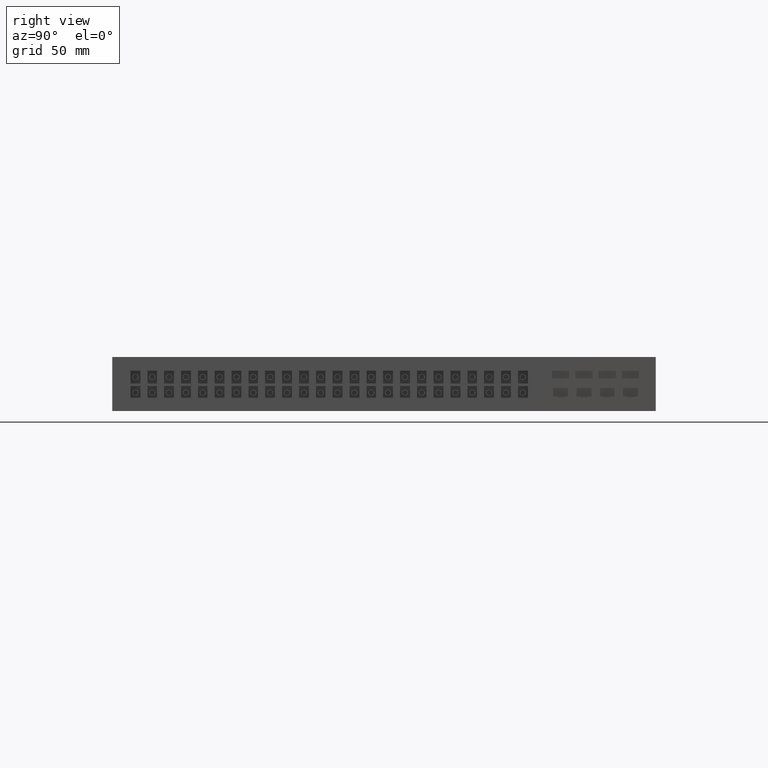
[diagram: clean part render]
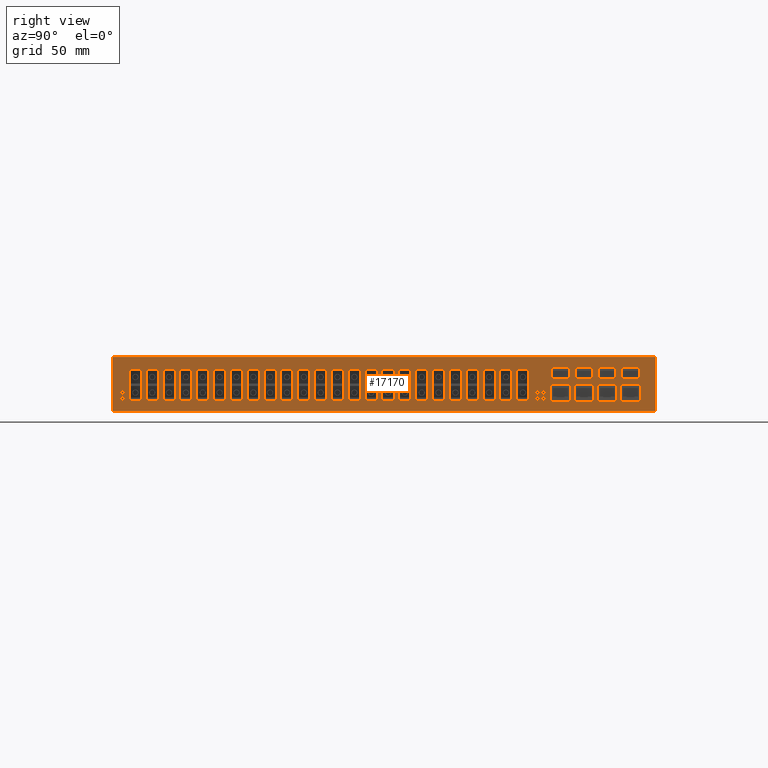
[diagram: same view with one face highlighted and labeled with its STEP entity id]
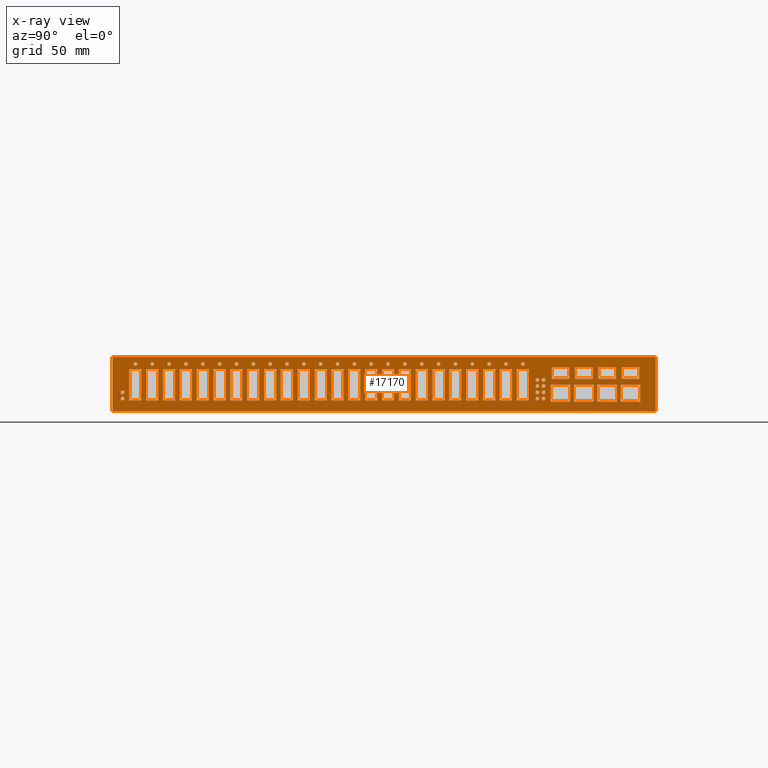
[diagram: x-ray of the same camera — body ghosted, the highlighted face saturated]
A machine part, right view. The second image highlights one B-rep face of the part: STEP entity #17170.
The next image is the same camera in x-ray: the body ghosted, the highlighted face saturated — about 0% of this face is hidden behind the body in this view.
In plain terms, the highlighted planar face has unit normal (1, 0, 0).
Its self-contained STEP definition (entity closure, byte-faithful):
#200=CARTESIAN_POINT('',(221.306013042565,4.40363222366137,
374.99999999998));
#210=VERTEX_POINT('',#200);
#240=CARTESIAN_POINT('',(0.,4.40363222366137,374.99999999998));
#250=DIRECTION('',(-1.,0.,0.));
#260=VECTOR('',#250,1.);
#270=LINE('',#240,#260);
#280=CARTESIAN_POINT('',(-220.693986957435,4.40363222366137,
374.99999999998));
#290=VERTEX_POINT('',#280);
#300=EDGE_CURVE('',#210,#290,#270,.T.);
#520=CARTESIAN_POINT('',(-220.693986957435,-39.5963677763395,
374.99999999998));
#530=VERTEX_POINT('',#520);
#560=CARTESIAN_POINT('',(0.,-39.5963677763395,374.99999999998));
#570=DIRECTION('',(1.,0.,0.));
#580=VECTOR('',#570,1.);
#590=LINE('',#560,#580);
#600=CARTESIAN_POINT('',(221.306013042565,-39.5963677763395,
374.99999999998));
#610=VERTEX_POINT('',#600);
#620=EDGE_CURVE('',#530,#610,#590,.T.);
#860=CARTESIAN_POINT('',(-220.693986957435,0.,374.99999999998));
#870=DIRECTION('',(0.,-1.,0.));
#880=VECTOR('',#870,1.);
#890=LINE('',#860,#880);
#900=EDGE_CURVE('',#290,#530,#890,.T.);
#1030=CARTESIAN_POINT('',(-231.744053107435,-40.6964339263395,
374.99999999998));
#1040=DIRECTION('',(0.,0.,1.));
#1050=DIRECTION('',(1.,0.,0.));
#1060=AXIS2_PLACEMENT_3D('',#1030,#1040,#1050);
#1070=PLANE('',#1060);
#1080=CARTESIAN_POINT('',(0.,-3.7963677763395,374.99999999998));
#1090=DIRECTION('',(1.,0.,0.));
#1100=VECTOR('',#1090,1.);
#1110=LINE('',#1080,#1100);
#1120=CARTESIAN_POINT('',(136.556013042565,-3.7963677763395,
374.99999999998));
#1130=VERTEX_POINT('',#1120);
#1140=CARTESIAN_POINT('',(151.056013042565,-3.7963677763395,
374.99999999998));
#1150=VERTEX_POINT('',#1140);
#1160=EDGE_CURVE('',#1130,#1150,#1110,.T.);
#1170=ORIENTED_EDGE('',*,*,#1160,.T.);
#1180=CARTESIAN_POINT('',(136.556013042565,0.,374.99999999998));
#1190=DIRECTION('',(0.,1.,0.));
#1200=VECTOR('',#1190,1.);
#1210=LINE('',#1180,#1200);
#1220=CARTESIAN_POINT('',(136.556013042565,-13.3963677763395,
374.99999999998));
#1230=VERTEX_POINT('',#1220);
#1240=EDGE_CURVE('',#1230,#1130,#1210,.T.);
#1250=ORIENTED_EDGE('',*,*,#1240,.T.);
#1260=CARTESIAN_POINT('',(0.,-13.3963677763395,374.99999999998));
#1270=DIRECTION('',(-1.,0.,0.));
#1280=VECTOR('',#1270,1.);
#1290=LINE('',#1260,#1280);
#1300=CARTESIAN_POINT('',(151.056013042565,-13.3963677763395,
374.99999999998));
#1310=VERTEX_POINT('',#1300);
#1320=EDGE_CURVE('',#1310,#1230,#1290,.T.);
#1330=ORIENTED_EDGE('',*,*,#1320,.T.);
#1340=CARTESIAN_POINT('',(151.056013042565,0.,374.99999999998));
#1350=DIRECTION('',(0.,-1.,0.));
#1360=VECTOR('',#1350,1.);
#1370=LINE('',#1340,#1360);
#1380=EDGE_CURVE('',#1150,#1310,#1370,.T.);
#1390=ORIENTED_EDGE('',*,*,#1380,.T.);
#1400=EDGE_LOOP('',(#1390,#1330,#1250,#1170));
#1410=FACE_BOUND('',#1400,.T.);
#1420=CARTESIAN_POINT('',(0.,-3.7963677763395,374.99999999998));
#1430=DIRECTION('',(1.,0.,0.));
#1440=VECTOR('',#1430,1.);
#1450=LINE('',#1420,#1440);
#1460=CARTESIAN_POINT('',(193.556013042565,-3.7963677763395,
374.99999999998));
#1470=VERTEX_POINT('',#1460);
#1480=CARTESIAN_POINT('',(208.056013042565,-3.7963677763395,
374.99999999998));
#1490=VERTEX_POINT('',#1480);
#1500=EDGE_CURVE('',#1470,#1490,#1450,.T.);
#1510=ORIENTED_EDGE('',*,*,#1500,.T.);
#1520=CARTESIAN_POINT('',(193.556013042565,0.,374.99999999998));
#1530=DIRECTION('',(0.,1.,0.));
#1540=VECTOR('',#1530,1.);
#1550=LINE('',#1520,#1540);
#1560=CARTESIAN_POINT('',(193.556013042565,-13.3963677763395,
374.99999999998));
#1570=VERTEX_POINT('',#1560);
#1580=EDGE_CURVE('',#1570,#1470,#1550,.T.);
#1590=ORIENTED_EDGE('',*,*,#1580,.T.);
#1600=CARTESIAN_POINT('',(0.,-13.3963677763395,374.99999999998));
#1610=DIRECTION('',(-1.,0.,0.));
#1620=VECTOR('',#1610,1.);
#1630=LINE('',#1600,#1620);
#1640=CARTESIAN_POINT('',(208.056013042565,-13.3963677763395,
374.99999999998));
#1650=VERTEX_POINT('',#1640);
#1660=EDGE_CURVE('',#1650,#1570,#1630,.T.);
#1670=ORIENTED_EDGE('',*,*,#1660,.T.);
#1680=CARTESIAN_POINT('',(208.056013042565,0.,374.99999999998));
#1690=DIRECTION('',(0.,-1.,0.));
#1700=VECTOR('',#1690,1.);
#1710=LINE('',#1680,#1700);
#1720=EDGE_CURVE('',#1490,#1650,#1710,.T.);
#1730=ORIENTED_EDGE('',*,*,#1720,.T.);
#1740=EDGE_LOOP('',(#1730,#1670,#1590,#1510));
#1750=FACE_BOUND('',#1740,.T.);
#1760=CARTESIAN_POINT('',(0.,-18.1963677763395,374.99999999998));
#1770=DIRECTION('',(1.,0.,0.));
#1780=VECTOR('',#1770,1.);
#1790=LINE('',#1760,#1780);
#1800=CARTESIAN_POINT('',(192.756013042565,-18.1963677763395,
374.99999999998));
#1810=VERTEX_POINT('',#1800);
#1820=CARTESIAN_POINT('',(208.856013042565,-18.1963677763395,
374.99999999998));
#1830=VERTEX_POINT('',#1820);
#1840=EDGE_CURVE('',#1810,#1830,#1790,.T.);
#1850=ORIENTED_EDGE('',*,*,#1840,.T.);
#1860=CARTESIAN_POINT('',(192.756013042565,0.,374.99999999998));
#1870=DIRECTION('',(0.,1.,0.));
#1880=VECTOR('',#1870,1.);
#1890=LINE('',#1860,#1880);
#1900=CARTESIAN_POINT('',(192.756013042565,-31.9963677763395,
374.99999999998));
#1910=VERTEX_POINT('',#1900);
#1920=EDGE_CURVE('',#1910,#1810,#1890,.T.);
#1930=ORIENTED_EDGE('',*,*,#1920,.T.);
#1940=CARTESIAN_POINT('',(0.,-31.9963677763395,374.99999999998));
#1950=DIRECTION('',(-1.,0.,0.));
#1960=VECTOR('',#1950,1.);
#1970=LINE('',#1940,#1960);
#1980=CARTESIAN_POINT('',(208.856013042565,-31.9963677763395,
374.99999999998));
#1990=VERTEX_POINT('',#1980);
#2000=EDGE_CURVE('',#1990,#1910,#1970,.T.);
#2010=ORIENTED_EDGE('',*,*,#2000,.T.);
#2020=CARTESIAN_POINT('',(208.856013042565,0.,374.99999999998));
#2030=DIRECTION('',(0.,-1.,0.));
#2040=VECTOR('',#2030,1.);
#2050=LINE('',#2020,#2040);
#2060=EDGE_CURVE('',#1830,#1990,#2050,.T.);
#2070=ORIENTED_EDGE('',*,*,#2060,.T.);
#2080=EDGE_LOOP('',(#2070,#2010,#1930,#1850));
#2090=FACE_BOUND('',#2080,.T.);
#2100=CARTESIAN_POINT('',(0.,-3.7963677763395,374.99999999998));
#2110=DIRECTION('',(1.,0.,0.));
#2120=VECTOR('',#2110,1.);
#2130=LINE('',#2100,#2120);
#2140=CARTESIAN_POINT('',(155.556013042565,-3.7963677763395,
374.99999999998));
#2150=VERTEX_POINT('',#2140);
#2160=CARTESIAN_POINT('',(170.056013042565,-3.7963677763395,
374.99999999998));
#2170=VERTEX_POINT('',#2160);
#2180=EDGE_CURVE('',#2150,#2170,#2130,.T.);
#2190=ORIENTED_EDGE('',*,*,#2180,.T.);
#2200=CARTESIAN_POINT('',(155.556013042565,0.,374.99999999998));
#2210=DIRECTION('',(0.,1.,0.));
#2220=VECTOR('',#2210,1.);
#2230=LINE('',#2200,#2220);
#2240=CARTESIAN_POINT('',(155.556013042565,-13.3963677763395,
374.99999999998));
#2250=VERTEX_POINT('',#2240);
#2260=EDGE_CURVE('',#2250,#2150,#2230,.T.);
#2270=ORIENTED_EDGE('',*,*,#2260,.T.);
#2280=CARTESIAN_POINT('',(0.,-13.3963677763395,374.99999999998));
#2290=DIRECTION('',(-1.,0.,0.));
#2300=VECTOR('',#2290,1.);
#2310=LINE('',#2280,#2300);
#2320=CARTESIAN_POINT('',(170.056013042565,-13.3963677763395,
374.99999999998));
#2330=VERTEX_POINT('',#2320);
#2340=EDGE_CURVE('',#2330,#2250,#2310,.T.);
#2350=ORIENTED_EDGE('',*,*,#2340,.T.);
#2360=CARTESIAN_POINT('',(170.056013042565,0.,374.99999999998));
#2370=DIRECTION('',(0.,-1.,0.));
#2380=VECTOR('',#2370,1.);
#2390=LINE('',#2360,#2380);
#2400=EDGE_CURVE('',#2170,#2330,#2390,.T.);
#2410=ORIENTED_EDGE('',*,*,#2400,.T.);
#2420=EDGE_LOOP('',(#2410,#2350,#2270,#2190));
#2430=FACE_BOUND('',#2420,.T.);
#2440=CARTESIAN_POINT('',(0.,-3.7963677763395,374.99999999998));
#2450=DIRECTION('',(1.,0.,0.));
#2460=VECTOR('',#2450,1.);
#2470=LINE('',#2440,#2460);
#2480=CARTESIAN_POINT('',(174.556013042565,-3.7963677763395,
374.99999999998));
#2490=VERTEX_POINT('',#2480);
#2500=CARTESIAN_POINT('',(189.056013042565,-3.7963677763395,
374.99999999998));
#2510=VERTEX_POINT('',#2500);
#2520=EDGE_CURVE('',#2490,#2510,#2470,.T.);
#2530=ORIENTED_EDGE('',*,*,#2520,.T.);
#2540=CARTESIAN_POINT('',(174.556013042565,0.,374.99999999998));
#2550=DIRECTION('',(0.,1.,0.));
#2560=VECTOR('',#2550,1.);
#2570=LINE('',#2540,#2560);
#2580=CARTESIAN_POINT('',(174.556013042565,-13.3963677763395,
374.99999999998));
#2590=VERTEX_POINT('',#2580);
#2600=EDGE_CURVE('',#2590,#2490,#2570,.T.);
#2610=ORIENTED_EDGE('',*,*,#2600,.T.);
#2620=CARTESIAN_POINT('',(0.,-13.3963677763395,374.99999999998));
#2630=DIRECTION('',(-1.,0.,0.));
#2640=VECTOR('',#2630,1.);
#2650=LINE('',#2620,#2640);
#2660=CARTESIAN_POINT('',(189.056013042565,-13.3963677763395,
374.99999999998));
#2670=VERTEX_POINT('',#2660);
#2680=EDGE_CURVE('',#2670,#2590,#2650,.T.);
#2690=ORIENTED_EDGE('',*,*,#2680,.T.);
#2700=CARTESIAN_POINT('',(189.056013042565,0.,374.99999999998));
#2710=DIRECTION('',(0.,-1.,0.));
#2720=VECTOR('',#2710,1.);
#2730=LINE('',#2700,#2720);
#2740=EDGE_CURVE('',#2510,#2670,#2730,.T.);
#2750=ORIENTED_EDGE('',*,*,#2740,.T.);
#2760=EDGE_LOOP('',(#2750,#2690,#2610,#2530));
#2770=FACE_BOUND('',#2760,.T.);
#2780=CARTESIAN_POINT('',(-78.5939869574352,-1.39636777633817,
374.99999999998));
#2790=DIRECTION('',(0.,0.,1.));
#2800=DIRECTION('',(1.,1.2490009027033E-16,0.));
#2810=AXIS2_PLACEMENT_3D('',#2780,#2790,#2800);
#2820=CIRCLE('',#2810,1.6);
#2830=CARTESIAN_POINT('',(-80.1939869574352,-1.39636777633817,
374.99999999998));
#2840=VERTEX_POINT('',#2830);
#2850=CARTESIAN_POINT('',(-76.9939869574352,-1.39636777633817,
374.99999999998));
#2860=VERTEX_POINT('',#2850);
#2870=EDGE_CURVE('',#2840,#2860,#2820,.T.);
#2880=ORIENTED_EDGE('',*,*,#2870,.F.);
#2890=EDGE_CURVE('',#2860,#2840,#2820,.T.);
#2900=ORIENTED_EDGE('',*,*,#2890,.F.);
#2910=EDGE_LOOP('',(#2900,#2880));
#2920=FACE_BOUND('',#2910,.T.);
#2930=CARTESIAN_POINT('',(17.3060130425648,-1.39636777633816,
374.99999999998));
#2940=DIRECTION('',(0.,0.,1.));
#2950=DIRECTION('',(1.,1.2490009027033E-16,0.));
#2960=AXIS2_PLACEMENT_3D('',#2930,#2940,#2950);
#2970=CIRCLE('',#2960,1.60000000000001);
#2980=CARTESIAN_POINT('',(15.7060130425648,-1.39636777633816,
374.99999999998));
#2990=VERTEX_POINT('',#2980);
#3000=CARTESIAN_POINT('',(18.9060130425648,-1.39636777633816,
374.99999999998));
#3010=VERTEX_POINT('',#3000);
#3020=EDGE_CURVE('',#2990,#3010,#2970,.T.);
#3030=ORIENTED_EDGE('',*,*,#3020,.F.);
#3040=EDGE_CURVE('',#3010,#2990,#2970,.T.);
#3050=ORIENTED_EDGE('',*,*,#3040,.F.);
#3060=EDGE_LOOP('',(#3050,#3030));
#3070=FACE_BOUND('',#3060,.T.);
#3080=CARTESIAN_POINT('',(-23.7939869574352,-1.39636777633817,
374.99999999998));
#3090=DIRECTION('',(0.,0.,1.));
#3100=DIRECTION('',(1.,1.2490009027033E-16,0.));
#3110=AXIS2_PLACEMENT_3D('',#3080,#3090,#3100);
#3120=CIRCLE('',#3110,1.60000000000001);
#3130=CARTESIAN_POINT('',(-22.1939869574352,-1.39636777633817,
374.99999999998));
#3140=VERTEX_POINT('',#3130);
#3150=CARTESIAN_POINT('',(-25.3939869574352,-1.39636777633817,
374.99999999998));
#3160=VERTEX_POINT('',#3150);
#3170=EDGE_CURVE('',#3140,#3160,#3120,.T.);
#3180=ORIENTED_EDGE('',*,*,#3170,.F.);
#3190=EDGE_CURVE('',#3160,#3140,#3120,.T.);
#3200=ORIENTED_EDGE('',*,*,#3190,.F.);
#3210=EDGE_LOOP('',(#3200,#3180));
#3220=FACE_BOUND('',#3210,.T.);
#3230=CARTESIAN_POINT('',(-174.493986957435,-1.39636777633819,
374.99999999998));
#3240=DIRECTION('',(0.,0.,1.));
#3250=DIRECTION('',(1.,1.2490009027033E-16,0.));
#3260=AXIS2_PLACEMENT_3D('',#3230,#3240,#3250);
#3270=CIRCLE('',#3260,1.60000000000002);
#3280=CARTESIAN_POINT('',(-176.093986957435,-1.39636777633819,
374.99999999998));
#3290=VERTEX_POINT('',#3280);
#3300=CARTESIAN_POINT('',(-172.893986957435,-1.39636777633819,
374.99999999998));
#3310=VERTEX_POINT('',#3300);
#3320=EDGE_CURVE('',#3290,#3310,#3270,.T.);
#3330=ORIENTED_EDGE('',*,*,#3320,.F.);
#3340=EDGE_CURVE('',#3310,#3290,#3270,.T.);
#3350=ORIENTED_EDGE('',*,*,#3340,.F.);
#3360=EDGE_LOOP('',(#3350,#3330));
#3370=FACE_BOUND('',#3360,.T.);
#3380=CARTESIAN_POINT('',(31.0060130425648,-1.39636777633816,
374.99999999998));
#3390=DIRECTION('',(0.,0.,1.));
#3400=DIRECTION('',(1.,1.2490009027033E-16,0.));
#3410=AXIS2_PLACEMENT_3D('',#3380,#3390,#3400);
#3420=CIRCLE('',#3410,1.6);
#3430=CARTESIAN_POINT('',(32.6060130425648,-1.39636777633816,
374.99999999998));
#3440=VERTEX_POINT('',#3430);
#3450=CARTESIAN_POINT('',(29.4060130425648,-1.39636777633816,
374.99999999998));
#3460=VERTEX_POINT('',#3450);
#3470=EDGE_CURVE('',#3440,#3460,#3420,.T.);
#3480=ORIENTED_EDGE('',*,*,#3470,.F.);
#3490=EDGE_CURVE('',#3460,#3440,#3420,.T.);
#3500=ORIENTED_EDGE('',*,*,#3490,.F.);
#3510=EDGE_LOOP('',(#3500,#3480));
#3520=FACE_BOUND('',#3510,.T.);
#3530=CARTESIAN_POINT('',(-92.2939869574352,-1.39636777633818,
374.99999999998));
#3540=DIRECTION('',(0.,0.,1.));
#3550=DIRECTION('',(1.,1.2490009027033E-16,0.));
#3560=AXIS2_PLACEMENT_3D('',#3530,#3540,#3550);
#3570=CIRCLE('',#3560,1.6);
#3580=CARTESIAN_POINT('',(-93.8939869574352,-1.39636777633818,
374.99999999998));
#3590=VERTEX_POINT('',#3580);
#3600=CARTESIAN_POINT('',(-90.6939869574352,-1.39636777633818,
374.99999999998));
#3610=VERTEX_POINT('',#3600);
#3620=EDGE_CURVE('',#3590,#3610,#3570,.T.);
#3630=ORIENTED_EDGE('',*,*,#3620,.F.);
#3640=EDGE_CURVE('',#3610,#3590,#3570,.T.);
#3650=ORIENTED_EDGE('',*,*,#3640,.F.);
#3660=EDGE_LOOP('',(#3650,#3630));
#3670=FACE_BOUND('',#3660,.T.);
#3680=CARTESIAN_POINT('',(113.206013042565,-1.39636777633815,
374.99999999998));
#3690=DIRECTION('',(0.,0.,1.));
#3700=DIRECTION('',(1.,1.2490009027033E-16,0.));
#3710=AXIS2_PLACEMENT_3D('',#3680,#3690,#3700);
#3720=CIRCLE('',#3710,1.6);
#3730=CARTESIAN_POINT('',(111.606013042565,-1.39636777633815,
374.99999999998));
#3740=VERTEX_POINT('',#3730);
#3750=CARTESIAN_POINT('',(114.806013042565,-1.39636777633815,
374.99999999998));
#3760=VERTEX_POINT('',#3750);
#3770=EDGE_CURVE('',#3740,#3760,#3720,.T.);
#3780=ORIENTED_EDGE('',*,*,#3770,.F.);
#3790=EDGE_CURVE('',#3760,#3740,#3720,.T.);
#3800=ORIENTED_EDGE('',*,*,#3790,.F.);
#3810=EDGE_LOOP('',(#3800,#3780));
#3820=FACE_BOUND('',#3810,.T.);
#3830=CARTESIAN_POINT('',(58.4060130425648,-1.39636777633816,
374.99999999998));
#3840=DIRECTION('',(0.,0.,1.));
#3850=DIRECTION('',(1.,1.2490009027033E-16,0.));
#3860=AXIS2_PLACEMENT_3D('',#3830,#3840,#3850);
#3870=CIRCLE('',#3860,1.6);
#3880=CARTESIAN_POINT('',(56.8060130425648,-1.39636777633816,
374.99999999998));
#3890=VERTEX_POINT('',#3880);
#3900=CARTESIAN_POINT('',(60.0060130425648,-1.39636777633816,
374.99999999998));
#3910=VERTEX_POINT('',#3900);
#3920=EDGE_CURVE('',#3890,#3910,#3870,.T.);
#3930=ORIENTED_EDGE('',*,*,#3920,.F.);
#3940=EDGE_CURVE('',#3910,#3890,#3870,.T.);
#3950=ORIENTED_EDGE('',*,*,#3940,.F.);
#3960=EDGE_LOOP('',(#3950,#3930));
#3970=FACE_BOUND('',#3960,.T.);
#3980=CARTESIAN_POINT('',(-64.8939869574352,-1.39636777633817,
374.99999999998));
#3990=DIRECTION('',(0.,0.,1.));
#4000=DIRECTION('',(1.,1.2490009027033E-16,0.));
#4010=AXIS2_PLACEMENT_3D('',#3980,#3990,#4000);
#4020=CIRCLE('',#4010,1.6);
#4030=CARTESIAN_POINT('',(-66.4939869574353,-1.39636777633817,
374.99999999998));
#4040=VERTEX_POINT('',#4030);
#4050=CARTESIAN_POINT('',(-63.2939869574352,-1.39636777633817,
374.99999999998));
#4060=VERTEX_POINT('',#4050);
#4070=EDGE_CURVE('',#4040,#4060,#4020,.T.);
#4080=ORIENTED_EDGE('',*,*,#4070,.F.);
#4090=EDGE_CURVE('',#4060,#4040,#4020,.T.);
#4100=ORIENTED_EDGE('',*,*,#4090,.F.);
#4110=EDGE_LOOP('',(#4100,#4080));
#4120=FACE_BOUND('',#4110,.T.);
#4130=CARTESIAN_POINT('',(44.7060130425648,-1.39636777633816,
374.99999999998));
#4140=DIRECTION('',(0.,0.,1.));
#4150=DIRECTION('',(1.,1.2490009027033E-16,0.));
#4160=AXIS2_PLACEMENT_3D('',#4130,#4140,#4150);
#4170=CIRCLE('',#4160,1.6);
#4180=CARTESIAN_POINT('',(43.1060130425648,-1.39636777633816,
374.99999999998));
#4190=VERTEX_POINT('',#4180);
#4200=CARTESIAN_POINT('',(46.3060130425648,-1.39636777633816,
374.99999999998));
#4210=VERTEX_POINT('',#4200);
#4220=EDGE_CURVE('',#4190,#4210,#4170,.T.);
#4230=ORIENTED_EDGE('',*,*,#4220,.F.);
#4240=EDGE_CURVE('',#4210,#4190,#4170,.T.);
#4250=ORIENTED_EDGE('',*,*,#4240,.F.);
#4260=EDGE_LOOP('',(#4250,#4230));
#4270=FACE_BOUND('',#4260,.T.);
#4280=CARTESIAN_POINT('',(3.60601304256478,-1.39636777633816,
374.99999999998));
#4290=DIRECTION('',(0.,0.,1.));
#4300=DIRECTION('',(1.,1.2490009027033E-16,0.));
#4310=AXIS2_PLACEMENT_3D('',#4280,#4290,#4300);
#4320=CIRCLE('',#4310,1.60000000000001);
#4330=CARTESIAN_POINT('',(2.00601304256478,-1.39636777633816,
374.99999999998));
#4340=VERTEX_POINT('',#4330);
#4350=CARTESIAN_POINT('',(5.20601304256479,-1.39636777633816,
374.99999999998));
#4360=VERTEX_POINT('',#4350);
#4370=EDGE_CURVE('',#4340,#4360,#4320,.T.);
#4380=ORIENTED_EDGE('',*,*,#4370,.F.);
#4390=EDGE_CURVE('',#4360,#4340,#4320,.T.);
#4400=ORIENTED_EDGE('',*,*,#4390,.F.);
#4410=EDGE_LOOP('',(#4400,#4380));
#4420=FACE_BOUND('',#4410,.T.);
#4430=CARTESIAN_POINT('',(-188.193986957435,-1.39636777633819,
374.99999999998));
#4440=DIRECTION('',(0.,0.,1.));
#4450=DIRECTION('',(1.,1.2490009027033E-16,0.));
#4460=AXIS2_PLACEMENT_3D('',#4430,#4440,#4450);
#4470=CIRCLE('',#4460,1.60000000000002);
#4480=CARTESIAN_POINT('',(-189.793986957435,-1.39636777633819,
374.99999999998));
#4490=VERTEX_POINT('',#4480);
#4500=CARTESIAN_POINT('',(-186.593986957435,-1.39636777633819,
374.99999999998));
#4510=VERTEX_POINT('',#4500);
#4520=EDGE_CURVE('',#4490,#4510,#4470,.T.);
#4530=ORIENTED_EDGE('',*,*,#4520,.F.);
#4540=EDGE_CURVE('',#4510,#4490,#4470,.T.);
#4550=ORIENTED_EDGE('',*,*,#4540,.F.);
#4560=EDGE_LOOP('',(#4550,#4530));
#4570=FACE_BOUND('',#4560,.T.);
#4580=CARTESIAN_POINT('',(72.1060130425647,-1.39636777633816,
374.99999999998));
#4590=DIRECTION('',(0.,0.,1.));
#4600=DIRECTION('',(1.,1.2490009027033E-16,0.));
#4610=AXIS2_PLACEMENT_3D('',#4580,#4590,#4600);
#4620=CIRCLE('',#4610,1.6);
#4630=CARTESIAN_POINT('',(70.5060130425647,-1.39636777633816,
374.99999999998));
#4640=VERTEX_POINT('',#4630);
#4650=CARTESIAN_POINT('',(73.7060130425647,-1.39636777633816,
374.99999999998));
#4660=VERTEX_POINT('',#4650);
#4670=EDGE_CURVE('',#4640,#4660,#4620,.T.);
#4680=ORIENTED_EDGE('',*,*,#4670,.F.);
#4690=EDGE_CURVE('',#4660,#4640,#4620,.T.);
#4700=ORIENTED_EDGE('',*,*,#4690,.F.);
#4710=EDGE_LOOP('',(#4700,#4680));
#4720=FACE_BOUND('',#4710,.T.);
#4730=CARTESIAN_POINT('',(-10.0939869574352,-1.39636777633817,
374.99999999998));
#4740=DIRECTION('',(0.,0.,1.));
#4750=DIRECTION('',(1.,1.2490009027033E-16,0.));
#4760=AXIS2_PLACEMENT_3D('',#4730,#4740,#4750);
#4770=CIRCLE('',#4760,1.60000000000001);
#4780=CARTESIAN_POINT('',(-8.49398695743522,-1.39636777633817,
374.99999999998));
#4790=VERTEX_POINT('',#4780);
#4800=CARTESIAN_POINT('',(-11.6939869574352,-1.39636777633817,
374.99999999998));
#4810=VERTEX_POINT('',#4800);
#4820=EDGE_CURVE('',#4790,#4810,#4770,.T.);
#4830=ORIENTED_EDGE('',*,*,#4820,.F.);
#4840=EDGE_CURVE('',#4810,#4790,#4770,.T.);
#4850=ORIENTED_EDGE('',*,*,#4840,.F.);
#4860=EDGE_LOOP('',(#4850,#4830));
#4870=FACE_BOUND('',#4860,.T.);
#4880=CARTESIAN_POINT('',(-51.1939869574352,-1.39636777633817,
374.99999999998));
#4890=DIRECTION('',(0.,0.,1.));
#4900=DIRECTION('',(1.,1.2490009027033E-16,0.));
#4910=AXIS2_PLACEMENT_3D('',#4880,#4890,#4900);
#4920=CIRCLE('',#4910,1.6);
#4930=CARTESIAN_POINT('',(-52.7939869574352,-1.39636777633817,
374.99999999998));
#4940=VERTEX_POINT('',#4930);
#4950=CARTESIAN_POINT('',(-49.5939869574352,-1.39636777633817,
374.99999999998));
#4960=VERTEX_POINT('',#4950);
#4970=EDGE_CURVE('',#4940,#4960,#4920,.T.);
#4980=ORIENTED_EDGE('',*,*,#4970,.F.);
#4990=EDGE_CURVE('',#4960,#4940,#4920,.T.);
#5000=ORIENTED_EDGE('',*,*,#4990,.F.);
#5010=EDGE_LOOP('',(#5000,#4980));
#5020=FACE_BOUND('',#5010,.T.);
#5030=CARTESIAN_POINT('',(-133.393986957435,-1.39636777633818,
374.99999999998));
#5040=DIRECTION('',(0.,0.,1.));
#5050=DIRECTION('',(1.,1.2490009027033E-16,0.));
#5060=AXIS2_PLACEMENT_3D('',#5030,#5040,#5050);
#5070=CIRCLE('',#5060,1.60000000000002);
#5080=CARTESIAN_POINT('',(-134.993986957435,-1.39636777633818,
374.99999999998));
#5090=VERTEX_POINT('',#5080);
#5100=CARTESIAN_POINT('',(-131.793986957435,-1.39636777633818,
374.99999999998));
#5110=VERTEX_POINT('',#5100);
#5120=EDGE_CURVE('',#5090,#5110,#5070,.T.);
#5130=ORIENTED_EDGE('',*,*,#5120,.F.);
#5140=EDGE_CURVE('',#5110,#5090,#5070,.T.);
#5150=ORIENTED_EDGE('',*,*,#5140,.F.);
#5160=EDGE_LOOP('',(#5150,#5130));
#5170=FACE_BOUND('',#5160,.T.);
#5180=CARTESIAN_POINT('',(-160.793986957435,-1.39636777633819,
374.99999999998));
#5190=DIRECTION('',(0.,0.,1.));
#5200=DIRECTION('',(1.,1.2490009027033E-16,0.));
#5210=AXIS2_PLACEMENT_3D('',#5180,#5190,#5200);
#5220=CIRCLE('',#5210,1.60000000000002);
#5230=CARTESIAN_POINT('',(-159.193986957435,-1.39636777633818,
374.99999999998));
#5240=VERTEX_POINT('',#5230);
#5250=CARTESIAN_POINT('',(-162.393986957435,-1.39636777633819,
374.99999999998));
#5260=VERTEX_POINT('',#5250);
#5270=EDGE_CURVE('',#5240,#5260,#5220,.T.);
#5280=ORIENTED_EDGE('',*,*,#5270,.F.);
#5290=EDGE_CURVE('',#5260,#5240,#5220,.T.);
#5300=ORIENTED_EDGE('',*,*,#5290,.F.);
#5310=EDGE_LOOP('',(#5300,#5280));
#5320=FACE_BOUND('',#5310,.T.);
#5330=CARTESIAN_POINT('',(-37.4939869574352,-1.39636777633817,
374.99999999998));
#5340=DIRECTION('',(0.,0.,1.));
#5350=DIRECTION('',(1.,1.2490009027033E-16,0.));
#5360=AXIS2_PLACEMENT_3D('',#5330,#5340,#5350);
#5370=CIRCLE('',#5360,1.6);
#5380=CARTESIAN_POINT('',(-35.8939869574352,-1.39636777633817,
374.99999999998));
#5390=VERTEX_POINT('',#5380);
#5400=CARTESIAN_POINT('',(-39.0939869574352,-1.39636777633817,
374.99999999998));
#5410=VERTEX_POINT('',#5400);
#5420=EDGE_CURVE('',#5390,#5410,#5370,.T.);
#5430=ORIENTED_EDGE('',*,*,#5420,.F.);
#5440=EDGE_CURVE('',#5410,#5390,#5370,.T.);
#5450=ORIENTED_EDGE('',*,*,#5440,.F.);
#5460=EDGE_LOOP('',(#5450,#5430));
#5470=FACE_BOUND('',#5460,.T.);
#5480=CARTESIAN_POINT('',(85.8060130425648,-1.39636777633815,
374.99999999998));
#5490=DIRECTION('',(0.,0.,1.));
#5500=DIRECTION('',(1.,1.2490009027033E-16,0.));
#5510=AXIS2_PLACEMENT_3D('',#5480,#5490,#5500);
#5520=CIRCLE('',#5510,1.6);
#5530=CARTESIAN_POINT('',(84.2060130425647,-1.39636777633815,
374.99999999998));
#5540=VERTEX_POINT('',#5530);
#5550=CARTESIAN_POINT('',(87.4060130425648,-1.39636777633815,
374.99999999998));
#5560=VERTEX_POINT('',#5550);
#5570=EDGE_CURVE('',#5540,#5560,#5520,.T.);
#5580=ORIENTED_EDGE('',*,*,#5570,.F.);
#5590=EDGE_CURVE('',#5560,#5540,#5520,.T.);
#5600=ORIENTED_EDGE('',*,*,#5590,.F.);
#5610=EDGE_LOOP('',(#5600,#5580));
#5620=FACE_BOUND('',#5610,.T.);
#5630=CARTESIAN_POINT('',(-147.093986957435,-1.39636777633818,
374.99999999998));
#5640=DIRECTION('',(0.,0.,1.));
#5650=DIRECTION('',(1.,1.2490009027033E-16,0.));
#5660=AXIS2_PLACEMENT_3D('',#5630,#5640,#5650);
#5670=CIRCLE('',#5660,1.60000000000002);
#5680=CARTESIAN_POINT('',(-145.493986957435,-1.39636777633818,
374.99999999998));
#5690=VERTEX_POINT('',#5680);
#5700=CARTESIAN_POINT('',(-148.693986957435,-1.39636777633818,
374.99999999998));
#5710=VERTEX_POINT('',#5700);
#5720=EDGE_CURVE('',#5690,#5710,#5670,.T.);
#5730=ORIENTED_EDGE('',*,*,#5720,.F.);
#5740=EDGE_CURVE('',#5710,#5690,#5670,.T.);
#5750=ORIENTED_EDGE('',*,*,#5740,.F.);
#5760=EDGE_LOOP('',(#5750,#5730));
#5770=FACE_BOUND('',#5760,.T.);
#5780=CARTESIAN_POINT('',(-119.693986957435,-1.39636777633818,
374.99999999998));
#5790=DIRECTION('',(0.,0.,1.));
#5800=DIRECTION('',(1.,1.2490009027033E-16,0.));
#5810=AXIS2_PLACEMENT_3D('',#5780,#5790,#5800);
#5820=CIRCLE('',#5810,1.6);
#5830=CARTESIAN_POINT('',(-121.293986957435,-1.39636777633818,
374.99999999998));
#5840=VERTEX_POINT('',#5830);
#5850=CARTESIAN_POINT('',(-118.093986957435,-1.39636777633818,
374.99999999998));
#5860=VERTEX_POINT('',#5850);
#5870=EDGE_CURVE('',#5840,#5860,#5820,.T.);
#5880=ORIENTED_EDGE('',*,*,#5870,.F.);
#5890=EDGE_CURVE('',#5860,#5840,#5820,.T.);
#5900=ORIENTED_EDGE('',*,*,#5890,.F.);
#5910=EDGE_LOOP('',(#5900,#5880));
#5920=FACE_BOUND('',#5910,.T.);
#5930=CARTESIAN_POINT('',(-105.993986957435,-1.39636777633818,
374.99999999998));
#5940=DIRECTION('',(0.,0.,1.));
#5950=DIRECTION('',(1.,1.2490009027033E-16,0.));
#5960=AXIS2_PLACEMENT_3D('',#5930,#5940,#5950);
#5970=CIRCLE('',#5960,1.6);
#5980=CARTESIAN_POINT('',(-104.393986957435,-1.39636777633818,
374.99999999998));
#5990=VERTEX_POINT('',#5980);
#6000=CARTESIAN_POINT('',(-107.593986957435,-1.39636777633818,
374.99999999998));
#6010=VERTEX_POINT('',#6000);
#6020=EDGE_CURVE('',#5990,#6010,#5970,.T.);
#6030=ORIENTED_EDGE('',*,*,#6020,.F.);
#6040=EDGE_CURVE('',#6010,#5990,#5970,.T.);
#6050=ORIENTED_EDGE('',*,*,#6040,.F.);
#6060=EDGE_LOOP('',(#6050,#6030));
#6070=FACE_BOUND('',#6060,.T.);
#6080=CARTESIAN_POINT('',(-201.893986957435,-1.39636777633819,
374.99999999998));
#6090=DIRECTION('',(0.,0.,1.));
#6100=DIRECTION('',(1.,1.2490009027033E-16,0.));
#6110=AXIS2_PLACEMENT_3D('',#6080,#6090,#6100);
#6120=CIRCLE('',#6110,1.60000000000002);
#6130=CARTESIAN_POINT('',(-200.293986957435,-1.39636777633819,
374.99999999998));
#6140=VERTEX_POINT('',#6130);
#6150=CARTESIAN_POINT('',(-203.493986957435,-1.39636777633819,
374.99999999998));
#6160=VERTEX_POINT('',#6150);
#6170=EDGE_CURVE('',#6140,#6160,#6120,.T.);
#6180=ORIENTED_EDGE('',*,*,#6170,.F.);
#6190=EDGE_CURVE('',#6160,#6140,#6120,.T.);
#6200=ORIENTED_EDGE('',*,*,#6190,.F.);
#6210=EDGE_LOOP('',(#6200,#6180));
#6220=FACE_BOUND('',#6210,.T.);
#6230=CARTESIAN_POINT('',(99.5060130425648,-1.39636777633815,
374.99999999998));
#6240=DIRECTION('',(0.,0.,1.));
#6250=DIRECTION('',(1.,1.2490009027033E-16,0.));
#6260=AXIS2_PLACEMENT_3D('',#6230,#6240,#6250);
#6270=CIRCLE('',#6260,1.6);
#6280=CARTESIAN_POINT('',(97.9060130425648,-1.39636777633815,
374.99999999998));
#6290=VERTEX_POINT('',#6280);
#6300=CARTESIAN_POINT('',(101.106013042565,-1.39636777633815,
374.99999999998));
#6310=VERTEX_POINT('',#6300);
#6320=EDGE_CURVE('',#6290,#6310,#6270,.T.);
#6330=ORIENTED_EDGE('',*,*,#6320,.F.);
#6340=EDGE_CURVE('',#6310,#6290,#6270,.T.);
#6350=ORIENTED_EDGE('',*,*,#6340,.F.);
#6360=EDGE_LOOP('',(#6350,#6330));
#6370=FACE_BOUND('',#6360,.T.);
#6380=CARTESIAN_POINT('',(-69.9239869574351,0.,374.99999999998));
#6390=DIRECTION('',(-1.60015571609694E-16,1.,0.));
#6400=VECTOR('',#6390,1.);
#6410=LINE('',#6380,#6400);
#6420=CARTESIAN_POINT('',(-69.9239869574351,-31.0963677763395,
374.99999999998));
#6430=VERTEX_POINT('',#6420);
#6440=CARTESIAN_POINT('',(-69.9239869574351,-5.6963677763395,
374.99999999998));
#6450=VERTEX_POINT('',#6440);
#6460=EDGE_CURVE('',#6430,#6450,#6410,.T.);
#6470=ORIENTED_EDGE('',*,*,#6460,.T.);
#6480=CARTESIAN_POINT('',(0.,-31.0963677763395,374.99999999998));
#6490=DIRECTION('',(-1.,-1.60015571609694E-16,0.));
#6500=VECTOR('',#6490,1.);
#6510=LINE('',#6480,#6500);
#6520=CARTESIAN_POINT('',(-59.9239869574351,-31.0963677763395,
374.99999999998));
#6530=VERTEX_POINT('',#6520);
#6540=EDGE_CURVE('',#6530,#6430,#6510,.T.);
#6550=ORIENTED_EDGE('',*,*,#6540,.T.);
#6560=CARTESIAN_POINT('',(-59.9239869574351,0.,374.99999999998));
#6570=DIRECTION('',(1.60015571609694E-16,-1.,0.));
#6580=VECTOR('',#6570,1.);
#6590=LINE('',#6560,#6580);
#6600=CARTESIAN_POINT('',(-59.9239869574351,-5.6963677763395,
374.99999999998));
#6610=VERTEX_POINT('',#6600);
#6620=EDGE_CURVE('',#6610,#6530,#6590,.T.);
#6630=ORIENTED_EDGE('',*,*,#6620,.T.);
#6640=CARTESIAN_POINT('',(0.,-5.69636777633949,374.99999999998));
#6650=DIRECTION('',(1.,1.60015571609694E-16,0.));
#6660=VECTOR('',#6650,1.);
#6670=LINE('',#6640,#6660);
#6680=EDGE_CURVE('',#6450,#6610,#6670,.T.);
#6690=ORIENTED_EDGE('',*,*,#6680,.T.);
#6700=EDGE_LOOP('',(#6690,#6630,#6550,#6470));
#6710=FACE_BOUND('',#6700,.T.);
#6720=CARTESIAN_POINT('',(0.,-5.69636777633949,374.99999999998));
#6730=DIRECTION('',(1.,1.60015571609694E-16,0.));
#6740=VECTOR('',#6730,1.);
#6750=LINE('',#6720,#6740);
#6760=CARTESIAN_POINT('',(94.4760130425648,-5.69636777633948,
374.99999999998));
#6770=VERTEX_POINT('',#6760);
#6780=CARTESIAN_POINT('',(104.476013042565,-5.69636777633948,
374.99999999998));
#6790=VERTEX_POINT('',#6780);
#6800=EDGE_CURVE('',#6770,#6790,#6750,.T.);
#6810=ORIENTED_EDGE('',*,*,#6800,.T.);
#6820=CARTESIAN_POINT('',(94.4760130425648,0.,374.99999999998));
#6830=DIRECTION('',(-1.60015571609694E-16,1.,0.));
#6840=VECTOR('',#6830,1.);
#6850=LINE('',#6820,#6840);
#6860=CARTESIAN_POINT('',(94.4760130425648,-31.0963677763395,
374.99999999998));
#6870=VERTEX_POINT('',#6860);
#6880=EDGE_CURVE('',#6870,#6770,#6850,.T.);
#6890=ORIENTED_EDGE('',*,*,#6880,.T.);
#6900=CARTESIAN_POINT('',(0.,-31.0963677763395,374.99999999998));
#6910=DIRECTION('',(-1.,-1.60015571609694E-16,0.));
#6920=VECTOR('',#6910,1.);
#6930=LINE('',#6900,#6920);
#6940=CARTESIAN_POINT('',(104.476013042565,-31.0963677763395,
374.99999999998));
#6950=VERTEX_POINT('',#6940);
#6960=EDGE_CURVE('',#6950,#6870,#6930,.T.);
#6970=ORIENTED_EDGE('',*,*,#6960,.T.);
#6980=CARTESIAN_POINT('',(104.476013042565,0.,374.99999999998));
#6990=DIRECTION('',(1.60015571609694E-16,-1.,0.));
#7000=VECTOR('',#6990,1.);
#7010=LINE('',#6980,#7000);
#7020=EDGE_CURVE('',#6790,#6950,#7010,.T.);
#7030=ORIENTED_EDGE('',*,*,#7020,.T.);
#7040=EDGE_LOOP('',(#7030,#6970,#6890,#6810));
#7050=FACE_BOUND('',#7040,.T.);
#7060=CARTESIAN_POINT('',(39.6760130425648,0.,374.99999999998));
#7070=DIRECTION('',(-1.60015571609694E-16,1.,0.));
#7080=VECTOR('',#7070,1.);
#7090=LINE('',#7060,#7080);
#7100=CARTESIAN_POINT('',(39.6760130425648,-31.0963677763395,
374.99999999998));
#7110=VERTEX_POINT('',#7100);
#7120=CARTESIAN_POINT('',(39.6760130425648,-5.69636777633948,
374.99999999998));
#7130=VERTEX_POINT('',#7120);
#7140=EDGE_CURVE('',#7110,#7130,#7090,.T.);
#7150=ORIENTED_EDGE('',*,*,#7140,.T.);
#7160=CARTESIAN_POINT('',(0.,-31.0963677763395,374.99999999998));
#7170=DIRECTION('',(-1.,-1.60015571609694E-16,0.));
#7180=VECTOR('',#7170,1.);
#7190=LINE('',#7160,#7180);
#7200=CARTESIAN_POINT('',(49.6760130425649,-31.0963677763395,
374.99999999998));
#7210=VERTEX_POINT('',#7200);
#7220=EDGE_CURVE('',#7210,#7110,#7190,.T.);
#7230=ORIENTED_EDGE('',*,*,#7220,.T.);
#7240=CARTESIAN_POINT('',(49.6760130425648,0.,374.99999999998));
#7250=DIRECTION('',(1.60015571609694E-16,-1.,0.));
#7260=VECTOR('',#7250,1.);
#7270=LINE('',#7240,#7260);
#7280=CARTESIAN_POINT('',(49.6760130425648,-5.69636777633948,
374.99999999998));
#7290=VERTEX_POINT('',#7280);
#7300=EDGE_CURVE('',#7290,#7210,#7270,.T.);
#7310=ORIENTED_EDGE('',*,*,#7300,.T.);
#7320=CARTESIAN_POINT('',(0.,-5.69636777633949,374.99999999998));
#7330=DIRECTION('',(1.,1.60015571609694E-16,0.));
#7340=VECTOR('',#7330,1.);
#7350=LINE('',#7320,#7340);
#7360=EDGE_CURVE('',#7130,#7290,#7350,.T.);
#7370=ORIENTED_EDGE('',*,*,#7360,.T.);
#7380=EDGE_LOOP('',(#7370,#7310,#7230,#7150));
#7390=FACE_BOUND('',#7380,.T.);
#7400=CARTESIAN_POINT('',(0.,-31.0963677763395,374.99999999998));
#7410=DIRECTION('',(-1.,-1.60015571609694E-16,0.));
#7420=VECTOR('',#7410,1.);
#7430=LINE('',#7400,#7420);
#7440=CARTESIAN_POINT('',(-101.023986957435,-31.0963677763395,
374.99999999998));
#7450=VERTEX_POINT('',#7440);
#7460=CARTESIAN_POINT('',(-111.023986957435,-31.0963677763395,
374.99999999998));
#7470=VERTEX_POINT('',#7460);
#7480=EDGE_CURVE('',#7450,#7470,#7430,.T.);
#7490=ORIENTED_EDGE('',*,*,#7480,.T.);
#7500=CARTESIAN_POINT('',(-101.023986957435,0.,374.99999999998));
#7510=DIRECTION('',(1.60015571609694E-16,-1.,0.));
#7520=VECTOR('',#7510,1.);
#7530=LINE('',#7500,#7520);
#7540=CARTESIAN_POINT('',(-101.023986957435,-5.6963677763395,
374.99999999998));
#7550=VERTEX_POINT('',#7540);
#7560=EDGE_CURVE('',#7550,#7450,#7530,.T.);
#7570=ORIENTED_EDGE('',*,*,#7560,.T.);
#7580=CARTESIAN_POINT('',(0.,-5.69636777633948,374.99999999998));
#7590=DIRECTION('',(1.,1.60015571609694E-16,0.));
#7600=VECTOR('',#7590,1.);
#7610=LINE('',#7580,#7600);
#7620=CARTESIAN_POINT('',(-111.023986957435,-5.6963677763395,
374.99999999998));
#7630=VERTEX_POINT('',#7620);
#7640=EDGE_CURVE('',#7630,#7550,#7610,.T.);
#7650=ORIENTED_EDGE('',*,*,#7640,.T.);
#7660=CARTESIAN_POINT('',(-111.023986957435,0.,374.99999999998));
#7670=DIRECTION('',(-1.60015571609694E-16,1.,0.));
#7680=VECTOR('',#7670,1.);
#7690=LINE('',#7660,#7680);
#7700=EDGE_CURVE('',#7470,#7630,#7690,.T.);
#7710=ORIENTED_EDGE('',*,*,#7700,.T.);
#7720=EDGE_LOOP('',(#7710,#7650,#7570,#7490));
#7730=FACE_BOUND('',#7720,.T.);
#7740=CARTESIAN_POINT('',(0.,-31.0963677763395,374.99999999998));
#7750=DIRECTION('',(-1.,-1.60015571609694E-16,0.));
#7760=VECTOR('',#7750,1.);
#7770=LINE('',#7740,#7760);
#7780=CARTESIAN_POINT('',(-18.8239869574352,-31.0963677763395,
374.99999999998));
#7790=VERTEX_POINT('',#7780);
#7800=CARTESIAN_POINT('',(-28.8239869574352,-31.0963677763395,
374.99999999998));
#7810=VERTEX_POINT('',#7800);
#7820=EDGE_CURVE('',#7790,#7810,#7770,.T.);
#7830=ORIENTED_EDGE('',*,*,#7820,.T.);
#7840=CARTESIAN_POINT('',(-18.8239869574352,0.,374.99999999998));
#7850=DIRECTION('',(1.60015571609694E-16,-1.,0.));
#7860=VECTOR('',#7850,1.);
#7870=LINE('',#7840,#7860);
#7880=CARTESIAN_POINT('',(-18.8239869574352,-5.69636777633949,
374.99999999998));
#7890=VERTEX_POINT('',#7880);
#7900=EDGE_CURVE('',#7890,#7790,#7870,.T.);
#7910=ORIENTED_EDGE('',*,*,#7900,.T.);
#7920=CARTESIAN_POINT('',(0.,-5.69636777633949,374.99999999998));
#7930=DIRECTION('',(1.,1.60015571609694E-16,0.));
#7940=VECTOR('',#7930,1.);
#7950=LINE('',#7920,#7940);
#7960=CARTESIAN_POINT('',(-28.8239869574352,-5.69636777633949,
374.99999999998));
#7970=VERTEX_POINT('',#7960);
#7980=EDGE_CURVE('',#7970,#7890,#7950,.T.);
#7990=ORIENTED_EDGE('',*,*,#7980,.T.);
#8000=CARTESIAN_POINT('',(-28.8239869574352,0.,374.99999999998));
#8010=DIRECTION('',(-1.60015571609694E-16,1.,0.));
#8020=VECTOR('',#8010,1.);
#8030=LINE('',#8000,#8020);
#8040=EDGE_CURVE('',#7810,#7970,#8030,.T.);
#8050=ORIENTED_EDGE('',*,*,#8040,.T.);
#8060=EDGE_LOOP('',(#8050,#7990,#7910,#7830));
#8070=FACE_BOUND('',#8060,.T.);
#8080=CARTESIAN_POINT('',(0.,-31.0963677763395,374.99999999998));
#8090=DIRECTION('',(-1.,-1.60015571609694E-16,0.));
#8100=VECTOR('',#8090,1.);
#8110=LINE('',#8080,#8100);
#8120=CARTESIAN_POINT('',(118.176013042565,-31.0963677763395,
374.99999999998));
#8130=VERTEX_POINT('',#8120);
#8140=CARTESIAN_POINT('',(108.176013042565,-31.0963677763395,
374.99999999998));
#8150=VERTEX_POINT('',#8140);
#8160=EDGE_CURVE('',#8130,#8150,#8110,.T.);
#8170=ORIENTED_EDGE('',*,*,#8160,.T.);
#8180=CARTESIAN_POINT('',(118.176013042565,0.,374.99999999998));
#8190=DIRECTION('',(1.60015571609694E-16,-1.,0.));
#8200=VECTOR('',#8190,1.);
#8210=LINE('',#8180,#8200);
#8220=CARTESIAN_POINT('',(118.176013042565,-5.69636777633947,
374.99999999998));
#8230=VERTEX_POINT('',#8220);
#8240=EDGE_CURVE('',#8230,#8130,#8210,.T.);
#8250=ORIENTED_EDGE('',*,*,#8240,.T.);
#8260=CARTESIAN_POINT('',(0.,-5.69636777633949,374.99999999998));
#8270=DIRECTION('',(1.,1.60015571609694E-16,0.));
#8280=VECTOR('',#8270,1.);
#8290=LINE('',#8260,#8280);
#8300=CARTESIAN_POINT('',(108.176013042565,-5.69636777633947,
374.99999999998));
#8310=VERTEX_POINT('',#8300);
#8320=EDGE_CURVE('',#8310,#8230,#8290,.T.);
#8330=ORIENTED_EDGE('',*,*,#8320,.T.);
#8340=CARTESIAN_POINT('',(108.176013042565,0.,374.99999999998));
#8350=DIRECTION('',(-1.60015571609694E-16,1.,0.));
#8360=VECTOR('',#8350,1.);
#8370=LINE('',#8340,#8360);
#8380=EDGE_CURVE('',#8150,#8310,#8370,.T.);
#8390=ORIENTED_EDGE('',*,*,#8380,.T.);
#8400=EDGE_LOOP('',(#8390,#8330,#8250,#8170));
#8410=FACE_BOUND('',#8400,.T.);
#8420=CARTESIAN_POINT('',(-5.12398695743515,0.,374.99999999998));
#8430=DIRECTION('',(1.60015571609694E-16,-1.,0.));
#8440=VECTOR('',#8430,1.);
#8450=LINE('',#8420,#8440);
#8460=CARTESIAN_POINT('',(-5.12398695743515,-5.69636777633949,
374.99999999998));
#8470=VERTEX_POINT('',#8460);
#8480=CARTESIAN_POINT('',(-5.12398695743515,-31.0963677763395,
374.99999999998));
#8490=VERTEX_POINT('',#8480);
#8500=EDGE_CURVE('',#8470,#8490,#8450,.T.);
#8510=ORIENTED_EDGE('',*,*,#8500,.T.);
#8520=CARTESIAN_POINT('',(0.,-5.69636777633949,374.99999999998));
#8530=DIRECTION('',(1.,1.60015571609694E-16,0.));
#8540=VECTOR('',#8530,1.);
#8550=LINE('',#8520,#8540);
#8560=CARTESIAN_POINT('',(-15.1239869574351,-5.69636777633949,
374.99999999998));
#8570=VERTEX_POINT('',#8560);
#8580=EDGE_CURVE('',#8570,#8470,#8550,.T.);
#8590=ORIENTED_EDGE('',*,*,#8580,.T.);
#8600=CARTESIAN_POINT('',(-15.1239869574351,0.,374.99999999998));
#8610=DIRECTION('',(-1.60015571609694E-16,1.,0.));
#8620=VECTOR('',#8610,1.);
#8630=LINE('',#8600,#8620);
#8640=CARTESIAN_POINT('',(-15.1239869574351,-31.0963677763395,
374.99999999998));
#8650=VERTEX_POINT('',#8640);
#8660=EDGE_CURVE('',#8650,#8570,#8630,.T.);
#8670=ORIENTED_EDGE('',*,*,#8660,.T.);
#8680=CARTESIAN_POINT('',(0.,-31.0963677763395,374.99999999998));
#8690=DIRECTION('',(-1.,-1.60015571609694E-16,0.));
#8700=VECTOR('',#8690,1.);
#8710=LINE('',#8680,#8700);
#8720=EDGE_CURVE('',#8490,#8650,#8710,.T.);
#8730=ORIENTED_EDGE('',*,*,#8720,.T.);
#8740=EDGE_LOOP('',(#8730,#8670,#8590,#8510));
#8750=FACE_BOUND('',#8740,.T.);
#8760=CARTESIAN_POINT('',(-97.3239869574351,0.,374.99999999998));
#8770=DIRECTION('',(-1.60015571609694E-16,1.,0.));
#8780=VECTOR('',#8770,1.);
#8790=LINE('',#8760,#8780);
#8800=CARTESIAN_POINT('',(-97.3239869574351,-31.0963677763395,
374.99999999998));
#8810=VERTEX_POINT('',#8800);
#8820=CARTESIAN_POINT('',(-97.3239869574351,-5.6963677763395,
374.99999999998));
#8830=VERTEX_POINT('',#8820);
#8840=EDGE_CURVE('',#8810,#8830,#8790,.T.);
#8850=ORIENTED_EDGE('',*,*,#8840,.T.);
#8860=CARTESIAN_POINT('',(0.,-31.0963677763395,374.99999999998));
#8870=DIRECTION('',(-1.,-1.60015571609694E-16,0.));
#8880=VECTOR('',#8870,1.);
#8890=LINE('',#8860,#8880);
#8900=CARTESIAN_POINT('',(-87.3239869574352,-31.0963677763395,
374.99999999998));
#8910=VERTEX_POINT('',#8900);
#8920=EDGE_CURVE('',#8910,#8810,#8890,.T.);
#8930=ORIENTED_EDGE('',*,*,#8920,.T.);
#8940=CARTESIAN_POINT('',(-87.3239869574352,0.,374.99999999998));
#8950=DIRECTION('',(1.60015571609694E-16,-1.,0.));
#8960=VECTOR('',#8950,1.);
#8970=LINE('',#8940,#8960);
#8980=CARTESIAN_POINT('',(-87.3239869574352,-5.6963677763395,
374.99999999998));
#8990=VERTEX_POINT('',#8980);
#9000=EDGE_CURVE('',#8990,#8910,#8970,.T.);
#9010=ORIENTED_EDGE('',*,*,#9000,.T.);
#9020=CARTESIAN_POINT('',(0.,-5.69636777633948,374.99999999998));
#9030=DIRECTION('',(1.,1.60015571609694E-16,0.));
#9040=VECTOR('',#9030,1.);
#9050=LINE('',#9020,#9040);
#9060=EDGE_CURVE('',#8830,#8990,#9050,.T.);
#9070=ORIENTED_EDGE('',*,*,#9060,.T.);
#9080=EDGE_LOOP('',(#9070,#9010,#8930,#8850));
#9090=FACE_BOUND('',#9080,.T.);
#9100=CARTESIAN_POINT('',(0.,-31.0963677763395,374.99999999998));
#9110=DIRECTION('',(-1.,-1.60015571609694E-16,0.));
#9120=VECTOR('',#9110,1.);
#9130=LINE('',#9100,#9120);
#9140=CARTESIAN_POINT('',(-73.6239869574352,-31.0963677763395,
374.99999999998));
#9150=VERTEX_POINT('',#9140);
#9160=CARTESIAN_POINT('',(-83.6239869574351,-31.0963677763395,
374.99999999998));
#9170=VERTEX_POINT('',#9160);
#9180=EDGE_CURVE('',#9150,#9170,#9130,.T.);
#9190=ORIENTED_EDGE('',*,*,#9180,.T.);
#9200=CARTESIAN_POINT('',(-73.6239869574352,0.,374.99999999998));
#9210=DIRECTION('',(1.60015571609694E-16,-1.,0.));
#9220=VECTOR('',#9210,1.);
#9230=LINE('',#9200,#9220);
#9240=CARTESIAN_POINT('',(-73.6239869574352,-5.6963677763395,
374.99999999998));
#9250=VERTEX_POINT('',#9240);
#9260=EDGE_CURVE('',#9250,#9150,#9230,.T.);
#9270=ORIENTED_EDGE('',*,*,#9260,.T.);
#9280=CARTESIAN_POINT('',(0.,-5.69636777633949,374.99999999998));
#9290=DIRECTION('',(1.,1.60015571609694E-16,0.));
#9300=VECTOR('',#9290,1.);
#9310=LINE('',#9280,#9300);
#9320=CARTESIAN_POINT('',(-83.6239869574351,-5.6963677763395,
374.99999999998));
#9330=VERTEX_POINT('',#9320);
#9340=EDGE_CURVE('',#9330,#9250,#9310,.T.);
#9350=ORIENTED_EDGE('',*,*,#9340,.T.);
#9360=CARTESIAN_POINT('',(-83.6239869574351,0.,374.99999999998));
#9370=DIRECTION('',(-1.60015571609694E-16,1.,0.));
#9380=VECTOR('',#9370,1.);
#9390=LINE('',#9360,#9380);
#9400=EDGE_CURVE('',#9170,#9330,#9390,.T.);
#9410=ORIENTED_EDGE('',*,*,#9400,.T.);
#9420=EDGE_LOOP('',(#9410,#9350,#9270,#9190));
#9430=FACE_BOUND('',#9420,.T.);
#9440=CARTESIAN_POINT('',(0.,-31.0963677763395,374.99999999998));
#9450=DIRECTION('',(-1.,-1.60015571609694E-16,0.));
#9460=VECTOR('',#9450,1.);
#9470=LINE('',#9440,#9460);
#9480=CARTESIAN_POINT('',(-169.523986957435,-31.0963677763395,
374.99999999998));
#9490=VERTEX_POINT('',#9480);
#9500=CARTESIAN_POINT('',(-179.523986957435,-31.0963677763395,
374.99999999998));
#9510=VERTEX_POINT('',#9500);
#9520=EDGE_CURVE('',#9490,#9510,#9470,.T.);
#9530=ORIENTED_EDGE('',*,*,#9520,.T.);
#9540=CARTESIAN_POINT('',(-169.523986957435,0.,374.99999999998));
#9550=DIRECTION('',(1.60015571609694E-16,-1.,0.));
#9560=VECTOR('',#9550,1.);
#9570=LINE('',#9540,#9560);
#9580=CARTESIAN_POINT('',(-169.523986957435,-5.69636777633951,
374.99999999998));
#9590=VERTEX_POINT('',#9580);
#9600=EDGE_CURVE('',#9590,#9490,#9570,.T.);
#9610=ORIENTED_EDGE('',*,*,#9600,.T.);
#9620=CARTESIAN_POINT('',(0.,-5.69636777633948,374.99999999998));
#9630=DIRECTION('',(1.,1.60015571609694E-16,0.));
#9640=VECTOR('',#9630,1.);
#9650=LINE('',#9620,#9640);
#9660=CARTESIAN_POINT('',(-179.523986957435,-5.69636777633951,
374.99999999998));
#9670=VERTEX_POINT('',#9660);
#9680=EDGE_CURVE('',#9670,#9590,#9650,.T.);
#9690=ORIENTED_EDGE('',*,*,#9680,.T.);
#9700=CARTESIAN_POINT('',(-179.523986957435,0.,374.99999999998));
#9710=DIRECTION('',(-1.60015571609694E-16,1.,0.));
#9720=VECTOR('',#9710,1.);
#9730=LINE('',#9700,#9720);
#9740=EDGE_CURVE('',#9510,#9670,#9730,.T.);
#9750=ORIENTED_EDGE('',*,*,#9740,.T.);
#9760=EDGE_LOOP('',(#9750,#9690,#9610,#9530));
#9770=FACE_BOUND('',#9760,.T.);
#9780=CARTESIAN_POINT('',(0.,-31.0963677763395,374.99999999998));
#9790=DIRECTION('',(-1.,-1.60015571609694E-16,0.));
#9800=VECTOR('',#9790,1.);
#9810=LINE('',#9780,#9800);
#9820=CARTESIAN_POINT('',(90.7760130425648,-31.0963677763395,
374.99999999998));
#9830=VERTEX_POINT('',#9820);
#9840=CARTESIAN_POINT('',(80.7760130425649,-31.0963677763395,
374.99999999998));
#9850=VERTEX_POINT('',#9840);
#9860=EDGE_CURVE('',#9830,#9850,#9810,.T.);
#9870=ORIENTED_EDGE('',*,*,#9860,.T.);
#9880=CARTESIAN_POINT('',(90.7760130425648,0.,374.99999999998));
#9890=DIRECTION('',(1.60015571609694E-16,-1.,0.));
#9900=VECTOR('',#9890,1.);
#9910=LINE('',#9880,#9900);
#9920=CARTESIAN_POINT('',(90.7760130425648,-5.69636777633948,
374.99999999998));
#9930=VERTEX_POINT('',#9920);
#9940=EDGE_CURVE('',#9930,#9830,#9910,.T.);
#9950=ORIENTED_EDGE('',*,*,#9940,.T.);
#9960=CARTESIAN_POINT('',(0.,-5.69636777633949,374.99999999998));
#9970=DIRECTION('',(1.,1.60015571609694E-16,0.));
#9980=VECTOR('',#9970,1.);
#9990=LINE('',#9960,#9980);
#10000=CARTESIAN_POINT('',(80.7760130425649,-5.69636777633948,
374.99999999998));
#10010=VERTEX_POINT('',#10000);
#10020=EDGE_CURVE('',#10010,#9930,#9990,.T.);
#10030=ORIENTED_EDGE('',*,*,#10020,.T.);
#10040=CARTESIAN_POINT('',(80.7760130425649,0.,374.99999999998));
#10050=DIRECTION('',(-1.60015571609694E-16,1.,0.));
#10060=VECTOR('',#10050,1.);
#10070=LINE('',#10040,#10060);
#10080=EDGE_CURVE('',#9850,#10010,#10070,.T.);
#10090=ORIENTED_EDGE('',*,*,#10080,.T.);
#10100=EDGE_LOOP('',(#10090,#10030,#9950,#9870));
#10110=FACE_BOUND('',#10100,.T.);
#10120=CARTESIAN_POINT('',(-206.923986957435,0.,374.99999999998));
#10130=DIRECTION('',(-1.60015571609694E-16,1.,0.));
#10140=VECTOR('',#10130,1.);
#10150=LINE('',#10120,#10140);
#10160=CARTESIAN_POINT('',(-206.923986957435,-31.0963677763395,
374.99999999998));
#10170=VERTEX_POINT('',#10160);
#10180=CARTESIAN_POINT('',(-206.923986957435,-5.69636777633951,
374.99999999998));
#10190=VERTEX_POINT('',#10180);
#10200=EDGE_CURVE('',#10170,#10190,#10150,.T.);
#10210=ORIENTED_EDGE('',*,*,#10200,.T.);
#10220=CARTESIAN_POINT('',(0.,-31.0963677763395,374.99999999998));
#10230=DIRECTION('',(-1.,-1.60015571609694E-16,0.));
#10240=VECTOR('',#10230,1.);
#10250=LINE('',#10220,#10240);
#10260=CARTESIAN_POINT('',(-196.923986957435,-31.0963677763395,
374.99999999998));
#10270=VERTEX_POINT('',#10260);
#10280=EDGE_CURVE('',#10270,#10170,#10250,.T.);
#10290=ORIENTED_EDGE('',*,*,#10280,.T.);
#10300=CARTESIAN_POINT('',(-196.923986957435,0.,374.99999999998));
#10310=DIRECTION('',(1.60015571609694E-16,-1.,0.));
#10320=VECTOR('',#10310,1.);
#10330=LINE('',#10300,#10320);
#10340=CARTESIAN_POINT('',(-196.923986957435,-5.69636777633951,
374.99999999998));
#10350=VERTEX_POINT('',#10340);
#10360=EDGE_CURVE('',#10350,#10270,#10330,.T.);
#10370=ORIENTED_EDGE('',*,*,#10360,.T.);
#10380=CARTESIAN_POINT('',(0.,-5.69636777633948,374.99999999998));
#10390=DIRECTION('',(1.,1.60015571609694E-16,0.));
#10400=VECTOR('',#10390,1.);
#10410=LINE('',#10380,#10400);
#10420=EDGE_CURVE('',#10190,#10350,#10410,.T.);
#10430=ORIENTED_EDGE('',*,*,#10420,.T.);
#10440=EDGE_LOOP('',(#10430,#10370,#10290,#10210));
#10450=FACE_BOUND('',#10440,.T.);
#10460=CARTESIAN_POINT('',(53.3760130425648,0.,374.99999999998));
#10470=DIRECTION('',(-1.60015571609694E-16,1.,0.));
#10480=VECTOR('',#10470,1.);
#10490=LINE('',#10460,#10480);
#10500=CARTESIAN_POINT('',(53.3760130425648,-31.0963677763395,
374.99999999998));
#10510=VERTEX_POINT('',#10500);
#10520=CARTESIAN_POINT('',(53.3760130425648,-5.69636777633948,
374.99999999998));
#10530=VERTEX_POINT('',#10520);
#10540=EDGE_CURVE('',#10510,#10530,#10490,.T.);
#10550=ORIENTED_EDGE('',*,*,#10540,.T.);
#10560=CARTESIAN_POINT('',(0.,-31.0963677763395,374.99999999998));
#10570=DIRECTION('',(-1.,-1.60015571609694E-16,0.));
#10580=VECTOR('',#10570,1.);
#10590=LINE('',#10560,#10580);
#10600=CARTESIAN_POINT('',(63.3760130425649,-31.0963677763395,
374.99999999998));
#10610=VERTEX_POINT('',#10600);
#10620=EDGE_CURVE('',#10610,#10510,#10590,.T.);
#10630=ORIENTED_EDGE('',*,*,#10620,.T.);
#10640=CARTESIAN_POINT('',(63.3760130425649,0.,374.99999999998));
#10650=DIRECTION('',(1.60015571609694E-16,-1.,0.));
#10660=VECTOR('',#10650,1.);
#10670=LINE('',#10640,#10660);
#10680=CARTESIAN_POINT('',(63.3760130425649,-5.69636777633948,
374.99999999998));
#10690=VERTEX_POINT('',#10680);
#10700=EDGE_CURVE('',#10690,#10610,#10670,.T.);
#10710=ORIENTED_EDGE('',*,*,#10700,.T.);
#10720=CARTESIAN_POINT('',(0.,-5.69636777633949,374.99999999998));
#10730=DIRECTION('',(1.,1.60015571609694E-16,0.));
#10740=VECTOR('',#10730,1.);
#10750=LINE('',#10720,#10740);
#10760=EDGE_CURVE('',#10530,#10690,#10750,.T.);
#10770=ORIENTED_EDGE('',*,*,#10760,.T.);
#10780=EDGE_LOOP('',(#10770,#10710,#10630,#10550));
#10790=FACE_BOUND('',#10780,.T.);
#10800=CARTESIAN_POINT('',(0.,-31.0963677763395,374.99999999998));
#10810=DIRECTION('',(-1.,-1.60015571609694E-16,0.));
#10820=VECTOR('',#10810,1.);
#10830=LINE('',#10800,#10820);
#10840=CARTESIAN_POINT('',(-142.123986957435,-31.0963677763395,
374.99999999998));
#10850=VERTEX_POINT('',#10840);
#10860=CARTESIAN_POINT('',(-152.123986957435,-31.0963677763395,
374.99999999998));
#10870=VERTEX_POINT('',#10860);
#10880=EDGE_CURVE('',#10850,#10870,#10830,.T.);
#10890=ORIENTED_EDGE('',*,*,#10880,.T.);
#10900=CARTESIAN_POINT('',(-142.123986957435,0.,374.99999999998));
#10910=DIRECTION('',(1.60015571609694E-16,-1.,0.));
#10920=VECTOR('',#10910,1.);
#10930=LINE('',#10900,#10920);
#10940=CARTESIAN_POINT('',(-142.123986957435,-5.69636777633951,
374.99999999998));
#10950=VERTEX_POINT('',#10940);
#10960=EDGE_CURVE('',#10950,#10850,#10930,.T.);
#10970=ORIENTED_EDGE('',*,*,#10960,.T.);
#10980=CARTESIAN_POINT('',(0.,-5.69636777633948,374.99999999998));
#10990=DIRECTION('',(1.,1.60015571609694E-16,0.));
#11000=VECTOR('',#10990,1.);
#11010=LINE('',#10980,#11000);
#11020=CARTESIAN_POINT('',(-152.123986957435,-5.69636777633951,
374.99999999998));
#11030=VERTEX_POINT('',#11020);
#11040=EDGE_CURVE('',#11030,#10950,#11010,.T.);
#11050=ORIENTED_EDGE('',*,*,#11040,.T.);
#11060=CARTESIAN_POINT('',(-152.123986957435,0.,374.99999999998));
#11070=DIRECTION('',(-1.60015571609694E-16,1.,0.));
#11080=VECTOR('',#11070,1.);
#11090=LINE('',#11060,#11080);
#11100=EDGE_CURVE('',#10870,#11030,#11090,.T.);
#11110=ORIENTED_EDGE('',*,*,#11100,.T.);
#11120=EDGE_LOOP('',(#11110,#11050,#10970,#10890));
#11130=FACE_BOUND('',#11120,.T.);
#11140=CARTESIAN_POINT('',(0.,-31.0963677763395,374.99999999998));
#11150=DIRECTION('',(-1.,-1.60015571609694E-16,0.));
#11160=VECTOR('',#11150,1.);
#11170=LINE('',#11140,#11160);
#11180=CARTESIAN_POINT('',(35.9760130425648,-31.0963677763395,
374.99999999998));
#11190=VERTEX_POINT('',#11180);
#11200=CARTESIAN_POINT('',(25.9760130425648,-31.0963677763395,
374.99999999998));
#11210=VERTEX_POINT('',#11200);
#11220=EDGE_CURVE('',#11190,#11210,#11170,.T.);
#11230=ORIENTED_EDGE('',*,*,#11220,.T.);
#11240=CARTESIAN_POINT('',(35.9760130425648,0.,374.99999999998));
#11250=DIRECTION('',(1.60015571609694E-16,-1.,0.));
#11260=VECTOR('',#11250,1.);
#11270=LINE('',#11240,#11260);
#11280=CARTESIAN_POINT('',(35.9760130425648,-5.69636777633948,
374.99999999998));
#11290=VERTEX_POINT('',#11280);
#11300=EDGE_CURVE('',#11290,#11190,#11270,.T.);
#11310=ORIENTED_EDGE('',*,*,#11300,.T.);
#11320=CARTESIAN_POINT('',(0.,-5.69636777633949,374.99999999998));
#11330=DIRECTION('',(1.,1.60015571609694E-16,0.));
#11340=VECTOR('',#11330,1.);
#11350=LINE('',#11320,#11340);
#11360=CARTESIAN_POINT('',(25.9760130425648,-5.69636777633948,
374.99999999998));
#11370=VERTEX_POINT('',#11360);
#11380=EDGE_CURVE('',#11370,#11290,#11350,.T.);
#11390=ORIENTED_EDGE('',*,*,#11380,.T.);
#11400=CARTESIAN_POINT('',(25.9760130425648,0.,374.99999999998));
#11410=DIRECTION('',(-1.60015571609694E-16,1.,0.));
#11420=VECTOR('',#11410,1.);
#11430=LINE('',#11400,#11420);
#11440=EDGE_CURVE('',#11210,#11370,#11430,.T.);
#11450=ORIENTED_EDGE('',*,*,#11440,.T.);
#11460=EDGE_LOOP('',(#11450,#11390,#11310,#11230));
#11470=FACE_BOUND('',#11460,.T.);
#11480=CARTESIAN_POINT('',(-193.223986957435,0.,374.99999999998));
#11490=DIRECTION('',(-1.60015571609694E-16,1.,0.));
#11500=VECTOR('',#11490,1.);
#11510=LINE('',#11480,#11500);
#11520=CARTESIAN_POINT('',(-193.223986957435,-31.0963677763395,
374.99999999998));
#11530=VERTEX_POINT('',#11520);
#11540=CARTESIAN_POINT('',(-193.223986957435,-5.69636777633951,
374.99999999998));
#11550=VERTEX_POINT('',#11540);
#11560=EDGE_CURVE('',#11530,#11550,#11510,.T.);
#11570=ORIENTED_EDGE('',*,*,#11560,.T.);
#11580=CARTESIAN_POINT('',(0.,-31.0963677763395,374.99999999998));
#11590=DIRECTION('',(-1.,-1.60015571609694E-16,0.));
#11600=VECTOR('',#11590,1.);
#11610=LINE('',#11580,#11600);
#11620=CARTESIAN_POINT('',(-183.223986957435,-31.0963677763395,
374.99999999998));
#11630=VERTEX_POINT('',#11620);
#11640=EDGE_CURVE('',#11630,#11530,#11610,.T.);
#11650=ORIENTED_EDGE('',*,*,#11640,.T.);
#11660=CARTESIAN_POINT('',(-183.223986957435,0.,374.99999999998));
#11670=DIRECTION('',(1.60015571609694E-16,-1.,0.));
#11680=VECTOR('',#11670,1.);
#11690=LINE('',#11660,#11680);
#11700=CARTESIAN_POINT('',(-183.223986957435,-5.69636777633951,
374.99999999998));
#11710=VERTEX_POINT('',#11700);
#11720=EDGE_CURVE('',#11710,#11630,#11690,.T.);
#11730=ORIENTED_EDGE('',*,*,#11720,.T.);
#11740=CARTESIAN_POINT('',(0.,-5.69636777633948,374.99999999998));
#11750=DIRECTION('',(1.,1.60015571609694E-16,0.));
#11760=VECTOR('',#11750,1.);
#11770=LINE('',#11740,#11760);
#11780=EDGE_CURVE('',#11550,#11710,#11770,.T.);
#11790=ORIENTED_EDGE('',*,*,#11780,.T.);
#11800=EDGE_LOOP('',(#11790,#11730,#11650,#11570));
#11810=FACE_BOUND('',#11800,.T.);
#11820=CARTESIAN_POINT('',(0.,-31.0963677763395,374.99999999998));
#11830=DIRECTION('',(-1.,-1.60015571609694E-16,0.));
#11840=VECTOR('',#11830,1.);
#11850=LINE('',#11820,#11840);
#11860=CARTESIAN_POINT('',(-155.823986957435,-31.0963677763395,
374.99999999998));
#11870=VERTEX_POINT('',#11860);
#11880=CARTESIAN_POINT('',(-165.823986957435,-31.0963677763395,
374.99999999998));
#11890=VERTEX_POINT('',#11880);
#11900=EDGE_CURVE('',#11870,#11890,#11850,.T.);
#11910=ORIENTED_EDGE('',*,*,#11900,.T.);
#11920=CARTESIAN_POINT('',(-155.823986957435,0.,374.99999999998));
#11930=DIRECTION('',(1.60015571609694E-16,-1.,0.));
#11940=VECTOR('',#11930,1.);
#11950=LINE('',#11920,#11940);
#11960=CARTESIAN_POINT('',(-155.823986957435,-5.69636777633951,
374.99999999998));
#11970=VERTEX_POINT('',#11960);
#11980=EDGE_CURVE('',#11970,#11870,#11950,.T.);
#11990=ORIENTED_EDGE('',*,*,#11980,.T.);
#12000=CARTESIAN_POINT('',(0.,-5.69636777633948,374.99999999998));
#12010=DIRECTION('',(1.,1.60015571609694E-16,0.));
#12020=VECTOR('',#12010,1.);
#12030=LINE('',#12000,#12020);
#12040=CARTESIAN_POINT('',(-165.823986957435,-5.69636777633951,
374.99999999998));
#12050=VERTEX_POINT('',#12040);
#12060=EDGE_CURVE('',#12050,#11970,#12030,.T.);
#12070=ORIENTED_EDGE('',*,*,#12060,.T.);
#12080=CARTESIAN_POINT('',(-165.823986957435,0.,374.99999999998));
#12090=DIRECTION('',(-1.60015571609694E-16,1.,0.));
#12100=VECTOR('',#12090,1.);
#12110=LINE('',#12080,#12100);
#12120=EDGE_CURVE('',#11890,#12050,#12110,.T.);
#12130=ORIENTED_EDGE('',*,*,#12120,.T.);
#12140=EDGE_LOOP('',(#12130,#12070,#11990,#11910));
#12150=FACE_BOUND('',#12140,.T.);
#12160=CARTESIAN_POINT('',(-124.723986957435,0.,374.99999999998));
#12170=DIRECTION('',(-1.60015571609694E-16,1.,0.));
#12180=VECTOR('',#12170,1.);
#12190=LINE('',#12160,#12180);
#12200=CARTESIAN_POINT('',(-124.723986957435,-31.0963677763395,
374.99999999998));
#12210=VERTEX_POINT('',#12200);
#12220=CARTESIAN_POINT('',(-124.723986957435,-5.6963677763395,
374.99999999998));
#12230=VERTEX_POINT('',#12220);
#12240=EDGE_CURVE('',#12210,#12230,#12190,.T.);
#12250=ORIENTED_EDGE('',*,*,#12240,.T.);
#12260=CARTESIAN_POINT('',(0.,-31.0963677763395,374.99999999998));
#12270=DIRECTION('',(-1.,-1.60015571609694E-16,0.));
#12280=VECTOR('',#12270,1.);
#12290=LINE('',#12260,#12280);
#12300=CARTESIAN_POINT('',(-114.723986957435,-31.0963677763395,
374.99999999998));
#12310=VERTEX_POINT('',#12300);
#12320=EDGE_CURVE('',#12310,#12210,#12290,.T.);
#12330=ORIENTED_EDGE('',*,*,#12320,.T.);
#12340=CARTESIAN_POINT('',(-114.723986957435,0.,374.99999999998));
#12350=DIRECTION('',(1.60015571609694E-16,-1.,0.));
#12360=VECTOR('',#12350,1.);
#12370=LINE('',#12340,#12360);
#12380=CARTESIAN_POINT('',(-114.723986957435,-5.6963677763395,
374.99999999998));
#12390=VERTEX_POINT('',#12380);
#12400=EDGE_CURVE('',#12390,#12310,#12370,.T.);
#12410=ORIENTED_EDGE('',*,*,#12400,.T.);
#12420=CARTESIAN_POINT('',(0.,-5.69636777633948,374.99999999998));
#12430=DIRECTION('',(1.,1.60015571609694E-16,0.));
#12440=VECTOR('',#12430,1.);
#12450=LINE('',#12420,#12440);
#12460=EDGE_CURVE('',#12230,#12390,#12450,.T.);
#12470=ORIENTED_EDGE('',*,*,#12460,.T.);
#12480=EDGE_LOOP('',(#12470,#12410,#12330,#12250));
#12490=FACE_BOUND('',#12480,.T.);
#12500=CARTESIAN_POINT('',(-46.2239869574352,0.,374.99999999998));
#12510=DIRECTION('',(1.60015571609694E-16,-1.,0.));
#12520=VECTOR('',#12510,1.);
#12530=LINE('',#12500,#12520);
#12540=CARTESIAN_POINT('',(-46.2239869574352,-5.69636777633949,
374.99999999998));
#12550=VERTEX_POINT('',#12540);
#12560=CARTESIAN_POINT('',(-46.2239869574352,-31.0963677763395,
374.99999999998));
#12570=VERTEX_POINT('',#12560);
#12580=EDGE_CURVE('',#12550,#12570,#12530,.T.);
#12590=ORIENTED_EDGE('',*,*,#12580,.T.);
#12600=CARTESIAN_POINT('',(0.,-5.69636777633949,374.99999999998));
#12610=DIRECTION('',(1.,1.60015571609694E-16,0.));
#12620=VECTOR('',#12610,1.);
#12630=LINE('',#12600,#12620);
#12640=CARTESIAN_POINT('',(-56.2239869574352,-5.6963677763395,
374.99999999998));
#12650=VERTEX_POINT('',#12640);
#12660=EDGE_CURVE('',#12650,#12550,#12630,.T.);
#12670=ORIENTED_EDGE('',*,*,#12660,.T.);
#12680=CARTESIAN_POINT('',(-56.2239869574352,0.,374.99999999998));
#12690=DIRECTION('',(-1.60015571609694E-16,1.,0.));
#12700=VECTOR('',#12690,1.);
#12710=LINE('',#12680,#12700);
#12720=CARTESIAN_POINT('',(-56.2239869574352,-31.0963677763395,
374.99999999998));
#12730=VERTEX_POINT('',#12720);
#12740=EDGE_CURVE('',#12730,#12650,#12710,.T.);
#12750=ORIENTED_EDGE('',*,*,#12740,.T.);
#12760=CARTESIAN_POINT('',(0.,-31.0963677763395,374.99999999998));
#12770=DIRECTION('',(-1.,-1.60015571609694E-16,0.));
#12780=VECTOR('',#12770,1.);
#12790=LINE('',#12760,#12780);
#12800=EDGE_CURVE('',#12570,#12730,#12790,.T.);
#12810=ORIENTED_EDGE('',*,*,#12800,.T.);
#12820=EDGE_LOOP('',(#12810,#12750,#12670,#12590));
#12830=FACE_BOUND('',#12820,.T.);
#12840=CARTESIAN_POINT('',(-42.5239869574352,0.,374.99999999998));
#12850=DIRECTION('',(-1.60015571609694E-16,1.,0.));
#12860=VECTOR('',#12850,1.);
#12870=LINE('',#12840,#12860);
#12880=CARTESIAN_POINT('',(-42.5239869574352,-31.0963677763395,
374.99999999998));
#12890=VERTEX_POINT('',#12880);
#12900=CARTESIAN_POINT('',(-42.5239869574352,-5.69636777633949,
374.99999999998));
#12910=VERTEX_POINT('',#12900);
#12920=EDGE_CURVE('',#12890,#12910,#12870,.T.);
#12930=ORIENTED_EDGE('',*,*,#12920,.T.);
#12940=CARTESIAN_POINT('',(0.,-31.0963677763395,374.99999999998));
#12950=DIRECTION('',(-1.,-1.60015571609694E-16,0.));
#12960=VECTOR('',#12950,1.);
#12970=LINE('',#12940,#12960);
#12980=CARTESIAN_POINT('',(-32.5239869574352,-31.0963677763395,
374.99999999998));
#12990=VERTEX_POINT('',#12980);
#13000=EDGE_CURVE('',#12990,#12890,#12970,.T.);
#13010=ORIENTED_EDGE('',*,*,#13000,.T.);
#13020=CARTESIAN_POINT('',(-32.5239869574352,0.,374.99999999998));
#13030=DIRECTION('',(1.60015571609694E-16,-1.,0.));
#13040=VECTOR('',#13030,1.);
#13050=LINE('',#13020,#13040);
#13060=CARTESIAN_POINT('',(-32.5239869574352,-5.69636777633949,
374.99999999998));
#13070=VERTEX_POINT('',#13060);
#13080=EDGE_CURVE('',#13070,#12990,#13050,.T.);
#13090=ORIENTED_EDGE('',*,*,#13080,.T.);
#13100=CARTESIAN_POINT('',(0.,-5.69636777633949,374.99999999998));
#13110=DIRECTION('',(1.,1.60015571609694E-16,0.));
#13120=VECTOR('',#13110,1.);
#13130=LINE('',#13100,#13120);
#13140=EDGE_CURVE('',#12910,#13070,#13130,.T.);
#13150=ORIENTED_EDGE('',*,*,#13140,.T.);
#13160=EDGE_LOOP('',(#13150,#13090,#13010,#12930));
#13170=FACE_BOUND('',#13160,.T.);
#13180=CARTESIAN_POINT('',(12.2760130425648,0.,374.99999999998));
#13190=DIRECTION('',(-1.60015571609694E-16,1.,0.));
#13200=VECTOR('',#13190,1.);
#13210=LINE('',#13180,#13200);
#13220=CARTESIAN_POINT('',(12.2760130425648,-31.0963677763395,
374.99999999998));
#13230=VERTEX_POINT('',#13220);
#13240=CARTESIAN_POINT('',(12.2760130425648,-5.69636777633949,
374.99999999998));
#13250=VERTEX_POINT('',#13240);
#13260=EDGE_CURVE('',#13230,#13250,#13210,.T.);
#13270=ORIENTED_EDGE('',*,*,#13260,.T.);
#13280=CARTESIAN_POINT('',(0.,-31.0963677763395,374.99999999998));
#13290=DIRECTION('',(-1.,-1.60015571609694E-16,0.));
#13300=VECTOR('',#13290,1.);
#13310=LINE('',#13280,#13300);
#13320=CARTESIAN_POINT('',(22.2760130425648,-31.0963677763395,
374.99999999998));
#13330=VERTEX_POINT('',#13320);
#13340=EDGE_CURVE('',#13330,#13230,#13310,.T.);
#13350=ORIENTED_EDGE('',*,*,#13340,.T.);
#13360=CARTESIAN_POINT('',(22.2760130425648,0.,374.99999999998));
#13370=DIRECTION('',(1.60015571609694E-16,-1.,0.));
#13380=VECTOR('',#13370,1.);
#13390=LINE('',#13360,#13380);
#13400=CARTESIAN_POINT('',(22.2760130425648,-5.69636777633948,
374.99999999998));
#13410=VERTEX_POINT('',#13400);
#13420=EDGE_CURVE('',#13410,#13330,#13390,.T.);
#13430=ORIENTED_EDGE('',*,*,#13420,.T.);
#13440=CARTESIAN_POINT('',(0.,-5.69636777633949,374.99999999998));
#13450=DIRECTION('',(1.,1.60015571609694E-16,0.));
#13460=VECTOR('',#13450,1.);
#13470=LINE('',#13440,#13460);
#13480=EDGE_CURVE('',#13250,#13410,#13470,.T.);
#13490=ORIENTED_EDGE('',*,*,#13480,.T.);
#13500=EDGE_LOOP('',(#13490,#13430,#13350,#13270));
#13510=FACE_BOUND('',#13500,.T.);
#13520=CARTESIAN_POINT('',(67.0760130425648,0.,374.99999999998));
#13530=DIRECTION('',(-1.60015571609694E-16,1.,0.));
#13540=VECTOR('',#13530,1.);
#13550=LINE('',#13520,#13540);
#13560=CARTESIAN_POINT('',(67.0760130425648,-31.0963677763395,
374.99999999998));
#13570=VERTEX_POINT('',#13560);
#13580=CARTESIAN_POINT('',(67.0760130425648,-5.69636777633948,
374.99999999998));
#13590=VERTEX_POINT('',#13580);
#13600=EDGE_CURVE('',#13570,#13590,#13550,.T.);
#13610=ORIENTED_EDGE('',*,*,#13600,.T.);
#13620=CARTESIAN_POINT('',(0.,-31.0963677763395,374.99999999998));
#13630=DIRECTION('',(-1.,-1.60015571609694E-16,0.));
#13640=VECTOR('',#13630,1.);
#13650=LINE('',#13620,#13640);
#13660=CARTESIAN_POINT('',(77.0760130425648,-31.0963677763395,
374.99999999998));
#13670=VERTEX_POINT('',#13660);
#13680=EDGE_CURVE('',#13670,#13570,#13650,.T.);
#13690=ORIENTED_EDGE('',*,*,#13680,.T.);
#13700=CARTESIAN_POINT('',(77.0760130425648,0.,374.99999999998));
#13710=DIRECTION('',(1.60015571609694E-16,-1.,0.));
#13720=VECTOR('',#13710,1.);
#13730=LINE('',#13700,#13720);
#13740=CARTESIAN_POINT('',(77.0760130425648,-5.69636777633948,
374.99999999998));
#13750=VERTEX_POINT('',#13740);
#13760=EDGE_CURVE('',#13750,#13670,#13730,.T.);
#13770=ORIENTED_EDGE('',*,*,#13760,.T.);
#13780=CARTESIAN_POINT('',(0.,-5.69636777633949,374.99999999998));
#13790=DIRECTION('',(1.,1.60015571609694E-16,0.));
#13800=VECTOR('',#13790,1.);
#13810=LINE('',#13780,#13800);
#13820=EDGE_CURVE('',#13590,#13750,#13810,.T.);
#13830=ORIENTED_EDGE('',*,*,#13820,.T.);
#13840=EDGE_LOOP('',(#13830,#13770,#13690,#13610));
#13850=FACE_BOUND('',#13840,.T.);
#13860=CARTESIAN_POINT('',(0.,-31.0963677763395,374.99999999998));
#13870=DIRECTION('',(-1.,-1.60015571609694E-16,0.));
#13880=VECTOR('',#13870,1.);
#13890=LINE('',#13860,#13880);
#13900=CARTESIAN_POINT('',(-128.423986957435,-31.0963677763395,
374.99999999998));
#13910=VERTEX_POINT('',#13900);
#13920=CARTESIAN_POINT('',(-138.423986957435,-31.0963677763395,
374.99999999998));
#13930=VERTEX_POINT('',#13920);
#13940=EDGE_CURVE('',#13910,#13930,#13890,.T.);
#13950=ORIENTED_EDGE('',*,*,#13940,.T.);
#13960=CARTESIAN_POINT('',(-128.423986957435,0.,374.99999999998));
#13970=DIRECTION('',(1.60015571609694E-16,-1.,0.));
#13980=VECTOR('',#13970,1.);
#13990=LINE('',#13960,#13980);
#14000=CARTESIAN_POINT('',(-128.423986957435,-5.6963677763395,
374.99999999998));
#14010=VERTEX_POINT('',#14000);
#14020=EDGE_CURVE('',#14010,#13910,#13990,.T.);
#14030=ORIENTED_EDGE('',*,*,#14020,.T.);
#14040=CARTESIAN_POINT('',(0.,-5.69636777633948,374.99999999998));
#14050=DIRECTION('',(1.,1.60015571609694E-16,0.));
#14060=VECTOR('',#14050,1.);
#14070=LINE('',#14040,#14060);
#14080=CARTESIAN_POINT('',(-138.423986957435,-5.69636777633951,
374.99999999998));
#14090=VERTEX_POINT('',#14080);
#14100=EDGE_CURVE('',#14090,#14010,#14070,.T.);
#14110=ORIENTED_EDGE('',*,*,#14100,.T.);
#14120=CARTESIAN_POINT('',(-138.423986957435,0.,374.99999999998));
#14130=DIRECTION('',(-1.60015571609694E-16,1.,0.));
#14140=VECTOR('',#14130,1.);
#14150=LINE('',#14120,#14140);
#14160=EDGE_CURVE('',#13930,#14090,#14150,.T.);
#14170=ORIENTED_EDGE('',*,*,#14160,.T.);
#14180=EDGE_LOOP('',(#14170,#14110,#14030,#13950));
#14190=FACE_BOUND('',#14180,.T.);
#14200=CARTESIAN_POINT('',(170.856013042565,0.,374.99999999998));
#14210=DIRECTION('',(0.,-1.,0.));
#14220=VECTOR('',#14210,1.);
#14230=LINE('',#14200,#14220);
#14240=CARTESIAN_POINT('',(170.856013042565,-18.1963677763395,
374.99999999998));
#14250=VERTEX_POINT('',#14240);
#14260=CARTESIAN_POINT('',(170.856013042565,-31.9963677763395,
374.99999999998));
#14270=VERTEX_POINT('',#14260);
#14280=EDGE_CURVE('',#14250,#14270,#14230,.T.);
#14290=ORIENTED_EDGE('',*,*,#14280,.T.);
#14300=CARTESIAN_POINT('',(0.,-18.1963677763395,374.99999999998));
#14310=DIRECTION('',(1.,0.,0.));
#14320=VECTOR('',#14310,1.);
#14330=LINE('',#14300,#14320);
#14340=CARTESIAN_POINT('',(154.756013042565,-18.1963677763395,
374.99999999998));
#14350=VERTEX_POINT('',#14340);
#14360=EDGE_CURVE('',#14350,#14250,#14330,.T.);
#14370=ORIENTED_EDGE('',*,*,#14360,.T.);
#14380=CARTESIAN_POINT('',(154.756013042565,0.,374.99999999998));
#14390=DIRECTION('',(0.,1.,0.));
#14400=VECTOR('',#14390,1.);
#14410=LINE('',#14380,#14400);
#14420=CARTESIAN_POINT('',(154.756013042565,-31.9963677763395,
374.99999999998));
#14430=VERTEX_POINT('',#14420);
#14440=EDGE_CURVE('',#14430,#14350,#14410,.T.);
#14450=ORIENTED_EDGE('',*,*,#14440,.T.);
#14460=CARTESIAN_POINT('',(0.,-31.9963677763395,374.99999999998));
#14470=DIRECTION('',(-1.,0.,0.));
#14480=VECTOR('',#14470,1.);
#14490=LINE('',#14460,#14480);
#14500=EDGE_CURVE('',#14270,#14430,#14490,.T.);
#14510=ORIENTED_EDGE('',*,*,#14500,.T.);
#14520=EDGE_LOOP('',(#14510,#14450,#14370,#14290));
#14530=FACE_BOUND('',#14520,.T.);
#14540=CARTESIAN_POINT('',(0.,-31.0963677763395,374.99999999998));
#14550=DIRECTION('',(-1.,-1.60015571609694E-16,0.));
#14560=VECTOR('',#14550,1.);
#14570=LINE('',#14540,#14560);
#14580=CARTESIAN_POINT('',(8.57601304256485,-31.0963677763395,
374.99999999998));
#14590=VERTEX_POINT('',#14580);
#14600=CARTESIAN_POINT('',(-1.42398695743516,-31.0963677763395,
374.99999999998));
#14610=VERTEX_POINT('',#14600);
#14620=EDGE_CURVE('',#14590,#14610,#14570,.T.);
#14630=ORIENTED_EDGE('',*,*,#14620,.T.);
#14640=CARTESIAN_POINT('',(8.57601304256485,0.,374.99999999998));
#14650=DIRECTION('',(1.2490009027033E-16,-1.,0.));
#14660=VECTOR('',#14650,1.);
#14670=LINE('',#14640,#14660);
#14680=CARTESIAN_POINT('',(8.57601304256485,-5.69636777633949,
374.99999999998));
#14690=VERTEX_POINT('',#14680);
#14700=EDGE_CURVE('',#14690,#14590,#14670,.T.);
#14710=ORIENTED_EDGE('',*,*,#14700,.T.);
#14720=CARTESIAN_POINT('',(0.,-5.69636777633949,374.99999999998));
#14730=DIRECTION('',(1.,1.60015571609694E-16,0.));
#14740=VECTOR('',#14730,1.);
#14750=LINE('',#14720,#14740);
#14760=CARTESIAN_POINT('',(-1.42398695743516,-5.69636777633949,
374.99999999998));
#14770=VERTEX_POINT('',#14760);
#14780=EDGE_CURVE('',#14770,#14690,#14750,.T.);
#14790=ORIENTED_EDGE('',*,*,#14780,.T.);
#14800=CARTESIAN_POINT('',(-1.42398695743517,0.,374.99999999998));
#14810=DIRECTION('',(-1.60015571609694E-16,1.,0.));
#14820=VECTOR('',#14810,1.);
#14830=LINE('',#14800,#14820);
#14840=EDGE_CURVE('',#14610,#14770,#14830,.T.);
#14850=ORIENTED_EDGE('',*,*,#14840,.T.);
#14860=EDGE_LOOP('',(#14850,#14790,#14710,#14630));
#14870=FACE_BOUND('',#14860,.T.);
#14880=CARTESIAN_POINT('',(135.756013042565,0.,374.99999999998));
#14890=DIRECTION('',(0.,1.,0.));
#14900=VECTOR('',#14890,1.);
#14910=LINE('',#14880,#14900);
#14920=CARTESIAN_POINT('',(135.756013042565,-31.9963677763395,
374.99999999998));
#14930=VERTEX_POINT('',#14920);
#14940=CARTESIAN_POINT('',(135.756013042565,-18.1963677763395,
374.99999999998));
#14950=VERTEX_POINT('',#14940);
#14960=EDGE_CURVE('',#14930,#14950,#14910,.T.);
#14970=ORIENTED_EDGE('',*,*,#14960,.T.);
#14980=CARTESIAN_POINT('',(0.,-31.9963677763395,374.99999999998));
#14990=DIRECTION('',(-1.,0.,0.));
#15000=VECTOR('',#14990,1.);
#15010=LINE('',#14980,#15000);
#15020=CARTESIAN_POINT('',(151.856013042565,-31.9963677763395,
374.99999999998));
#15030=VERTEX_POINT('',#15020);
#15040=EDGE_CURVE('',#15030,#14930,#15010,.T.);
#15050=ORIENTED_EDGE('',*,*,#15040,.T.);
#15060=CARTESIAN_POINT('',(151.856013042565,0.,374.99999999998));
#15070=DIRECTION('',(0.,-1.,0.));
#15080=VECTOR('',#15070,1.);
#15090=LINE('',#15060,#15080);
#15100=CARTESIAN_POINT('',(151.856013042565,-18.1963677763395,
374.99999999998));
#15110=VERTEX_POINT('',#15100);
#15120=EDGE_CURVE('',#15110,#15030,#15090,.T.);
#15130=ORIENTED_EDGE('',*,*,#15120,.T.);
#15140=CARTESIAN_POINT('',(0.,-18.1963677763395,374.99999999998));
#15150=DIRECTION('',(1.,0.,0.));
#15160=VECTOR('',#15150,1.);
#15170=LINE('',#15140,#15160);
#15180=EDGE_CURVE('',#14950,#15110,#15170,.T.);
#15190=ORIENTED_EDGE('',*,*,#15180,.T.);
#15200=EDGE_LOOP('',(#15190,#15130,#15050,#14970));
#15210=FACE_BOUND('',#15200,.T.);
#15220=CARTESIAN_POINT('',(189.856013042565,0.,374.99999999998));
#15230=DIRECTION('',(0.,-1.,0.));
#15240=VECTOR('',#15230,1.);
#15250=LINE('',#15220,#15240);
#15260=CARTESIAN_POINT('',(189.856013042565,-18.1963677763395,
374.99999999998));
#15270=VERTEX_POINT('',#15260);
#15280=CARTESIAN_POINT('',(189.856013042565,-31.9963677763395,
374.99999999998));
#15290=VERTEX_POINT('',#15280);
#15300=EDGE_CURVE('',#15270,#15290,#15250,.T.);
#15310=ORIENTED_EDGE('',*,*,#15300,.T.);
#15320=CARTESIAN_POINT('',(0.,-18.1963677763395,374.99999999998));
#15330=DIRECTION('',(1.,0.,0.));
#15340=VECTOR('',#15330,1.);
#15350=LINE('',#15320,#15340);
#15360=CARTESIAN_POINT('',(173.756013042565,-18.1963677763395,
374.99999999998));
#15370=VERTEX_POINT('',#15360);
#15380=EDGE_CURVE('',#15370,#15270,#15350,.T.);
#15390=ORIENTED_EDGE('',*,*,#15380,.T.);
#15400=CARTESIAN_POINT('',(173.756013042565,0.,374.99999999998));
#15410=DIRECTION('',(0.,1.,0.));
#15420=VECTOR('',#15410,1.);
#15430=LINE('',#15400,#15420);
#15440=CARTESIAN_POINT('',(173.756013042565,-31.9963677763395,
374.99999999998));
#15450=VERTEX_POINT('',#15440);
#15460=EDGE_CURVE('',#15450,#15370,#15430,.T.);
#15470=ORIENTED_EDGE('',*,*,#15460,.T.);
#15480=CARTESIAN_POINT('',(0.,-31.9963677763395,374.99999999998));
#15490=DIRECTION('',(-1.,0.,0.));
#15500=VECTOR('',#15490,1.);
#15510=LINE('',#15480,#15500);
#15520=EDGE_CURVE('',#15290,#15450,#15510,.T.);
#15530=ORIENTED_EDGE('',*,*,#15520,.T.);
#15540=EDGE_LOOP('',(#15530,#15470,#15390,#15310));
#15550=FACE_BOUND('',#15540,.T.);
#15560=CARTESIAN_POINT('',(221.306013042565,0.,374.99999999998));
#15570=DIRECTION('',(0.,1.,0.));
#15580=VECTOR('',#15570,1.);
#15590=LINE('',#15560,#15580);
#15600=EDGE_CURVE('',#610,#210,#15590,.T.);
#15610=ORIENTED_EDGE('',*,*,#15600,.T.);
#15620=ORIENTED_EDGE('',*,*,#620,.T.);
#15630=ORIENTED_EDGE('',*,*,#900,.T.);
#15640=ORIENTED_EDGE('',*,*,#300,.T.);
#15650=EDGE_LOOP('',(#15640,#15630,#15620,#15610));
#15660=FACE_OUTER_BOUND('',#15650,.T.);
#15670=CARTESIAN_POINT('',(130.006013042565,-24.4163677763381,
374.99999999998));
#15680=DIRECTION('',(0.,0.,1.));
#15690=DIRECTION('',(1.,1.2490009027033E-16,0.));
#15700=AXIS2_PLACEMENT_3D('',#15670,#15680,#15690);
#15710=CIRCLE('',#15700,1.59999999999999);
#15720=CARTESIAN_POINT('',(128.406013042565,-24.4163677763381,
374.99999999998));
#15730=VERTEX_POINT('',#15720);
#15740=CARTESIAN_POINT('',(131.606013042565,-24.4163677763381,
374.99999999998));
#15750=VERTEX_POINT('',#15740);
#15760=EDGE_CURVE('',#15730,#15750,#15710,.T.);
#15770=ORIENTED_EDGE('',*,*,#15760,.F.);
#15780=EDGE_CURVE('',#15750,#15730,#15710,.T.);
#15790=ORIENTED_EDGE('',*,*,#15780,.F.);
#15800=EDGE_LOOP('',(#15790,#15770));
#15810=FACE_BOUND('',#15800,.T.);
#15820=CARTESIAN_POINT('',(130.006013042565,-14.2563677763381,
374.99999999998));
#15830=DIRECTION('',(0.,0.,1.));
#15840=DIRECTION('',(1.,1.2490009027033E-16,0.));
#15850=AXIS2_PLACEMENT_3D('',#15820,#15830,#15840);
#15860=CIRCLE('',#15850,1.59999999999999);
#15870=CARTESIAN_POINT('',(128.406013042565,-14.2563677763381,
374.99999999998));
#15880=VERTEX_POINT('',#15870);
#15890=CARTESIAN_POINT('',(131.606013042565,-14.2563677763381,
374.99999999998));
#15900=VERTEX_POINT('',#15890);
#15910=EDGE_CURVE('',#15880,#15900,#15860,.T.);
#15920=ORIENTED_EDGE('',*,*,#15910,.F.);
#15930=EDGE_CURVE('',#15900,#15880,#15860,.T.);
#15940=ORIENTED_EDGE('',*,*,#15930,.F.);
#15950=EDGE_LOOP('',(#15940,#15920));
#15960=FACE_BOUND('',#15950,.T.);
#15970=CARTESIAN_POINT('',(130.006013042565,-19.3363677763381,
374.99999999998));
#15980=DIRECTION('',(0.,0.,1.));
#15990=DIRECTION('',(1.,1.2490009027033E-16,0.));
#16000=AXIS2_PLACEMENT_3D('',#15970,#15980,#15990);
#16010=CIRCLE('',#16000,1.59999999999999);
#16020=CARTESIAN_POINT('',(131.606013042565,-19.3363677763381,
374.99999999998));
#16030=VERTEX_POINT('',#16020);
#16040=CARTESIAN_POINT('',(128.406013042565,-19.3363677763381,
374.99999999998));
#16050=VERTEX_POINT('',#16040);
#16060=EDGE_CURVE('',#16030,#16050,#16010,.T.);
#16070=ORIENTED_EDGE('',*,*,#16060,.F.);
#16080=EDGE_CURVE('',#16050,#16030,#16010,.T.);
#16090=ORIENTED_EDGE('',*,*,#16080,.F.);
#16100=EDGE_LOOP('',(#16090,#16070));
#16110=FACE_BOUND('',#16100,.T.);
#16120=CARTESIAN_POINT('',(125.006013042565,-24.4163677763382,
374.99999999998));
#16130=DIRECTION('',(0.,0.,1.));
#16140=DIRECTION('',(1.,1.2490009027033E-16,0.));
#16150=AXIS2_PLACEMENT_3D('',#16120,#16130,#16140);
#16160=CIRCLE('',#16150,1.59999999999999);
#16170=CARTESIAN_POINT('',(123.406013042565,-24.4163677763382,
374.99999999998));
#16180=VERTEX_POINT('',#16170);
#16190=CARTESIAN_POINT('',(126.606013042565,-24.4163677763382,
374.99999999998));
#16200=VERTEX_POINT('',#16190);
#16210=EDGE_CURVE('',#16180,#16200,#16160,.T.);
#16220=ORIENTED_EDGE('',*,*,#16210,.F.);
#16230=EDGE_CURVE('',#16200,#16180,#16160,.T.);
#16240=ORIENTED_EDGE('',*,*,#16230,.F.);
#16250=EDGE_LOOP('',(#16240,#16220));
#16260=FACE_BOUND('',#16250,.T.);
#16270=CARTESIAN_POINT('',(130.006013042565,-29.4963677763381,
374.99999999998));
#16280=DIRECTION('',(0.,0.,1.));
#16290=DIRECTION('',(1.,1.2490009027033E-16,0.));
#16300=AXIS2_PLACEMENT_3D('',#16270,#16280,#16290);
#16310=CIRCLE('',#16300,1.59999999999999);
#16320=CARTESIAN_POINT('',(131.606013042565,-29.4963677763381,
374.99999999998));
#16330=VERTEX_POINT('',#16320);
#16340=CARTESIAN_POINT('',(128.406013042565,-29.4963677763381,
374.99999999998));
#16350=VERTEX_POINT('',#16340);
#16360=EDGE_CURVE('',#16330,#16350,#16310,.T.);
#16370=ORIENTED_EDGE('',*,*,#16360,.F.);
#16380=EDGE_CURVE('',#16350,#16330,#16310,.T.);
#16390=ORIENTED_EDGE('',*,*,#16380,.F.);
#16400=EDGE_LOOP('',(#16390,#16370));
#16410=FACE_BOUND('',#16400,.T.);
#16420=CARTESIAN_POINT('',(125.006013042565,-14.2563677763381,
374.99999999998));
#16430=DIRECTION('',(0.,0.,1.));
#16440=DIRECTION('',(1.,1.2490009027033E-16,0.));
#16450=AXIS2_PLACEMENT_3D('',#16420,#16430,#16440);
#16460=CIRCLE('',#16450,1.59999999999999);
#16470=CARTESIAN_POINT('',(126.606013042565,-14.2563677763381,
374.99999999998));
#16480=VERTEX_POINT('',#16470);
#16490=CARTESIAN_POINT('',(123.406013042565,-14.2563677763381,
374.99999999998));
#16500=VERTEX_POINT('',#16490);
#16510=EDGE_CURVE('',#16480,#16500,#16460,.T.);
#16520=ORIENTED_EDGE('',*,*,#16510,.F.);
#16530=EDGE_CURVE('',#16500,#16480,#16460,.T.);
#16540=ORIENTED_EDGE('',*,*,#16530,.F.);
#16550=EDGE_LOOP('',(#16540,#16520));
#16560=FACE_BOUND('',#16550,.T.);
#16570=CARTESIAN_POINT('',(125.006013042565,-19.3363677763381,
374.99999999998));
#16580=DIRECTION('',(0.,0.,1.));
#16590=DIRECTION('',(1.,1.2490009027033E-16,0.));
#16600=AXIS2_PLACEMENT_3D('',#16570,#16580,#16590);
#16610=CIRCLE('',#16600,1.59999999999999);
#16620=CARTESIAN_POINT('',(126.606013042565,-19.3363677763381,
374.99999999998));
#16630=VERTEX_POINT('',#16620);
#16640=CARTESIAN_POINT('',(123.406013042565,-19.3363677763381,
374.99999999998));
#16650=VERTEX_POINT('',#16640);
#16660=EDGE_CURVE('',#16630,#16650,#16610,.T.);
#16670=ORIENTED_EDGE('',*,*,#16660,.F.);
#16680=EDGE_CURVE('',#16650,#16630,#16610,.T.);
#16690=ORIENTED_EDGE('',*,*,#16680,.F.);
#16700=EDGE_LOOP('',(#16690,#16670));
#16710=FACE_BOUND('',#16700,.T.);
#16720=CARTESIAN_POINT('',(125.006013042565,-29.4963677763381,
374.99999999998));
#16730=DIRECTION('',(0.,0.,1.));
#16740=DIRECTION('',(1.,1.2490009027033E-16,0.));
#16750=AXIS2_PLACEMENT_3D('',#16720,#16730,#16740);
#16760=CIRCLE('',#16750,1.59999999999999);
#16770=CARTESIAN_POINT('',(123.406013042565,-29.4963677763381,
374.99999999998));
#16780=VERTEX_POINT('',#16770);
#16790=CARTESIAN_POINT('',(126.606013042565,-29.4963677763381,
374.99999999998));
#16800=VERTEX_POINT('',#16790);
#16810=EDGE_CURVE('',#16780,#16800,#16760,.T.);
#16820=ORIENTED_EDGE('',*,*,#16810,.F.);
#16830=EDGE_CURVE('',#16800,#16780,#16760,.T.);
#16840=ORIENTED_EDGE('',*,*,#16830,.F.);
#16850=EDGE_LOOP('',(#16840,#16820));
#16860=FACE_BOUND('',#16850,.T.);
#16870=CARTESIAN_POINT('',(-212.393986957435,-29.4963677763382,
374.99999999998));
#16880=DIRECTION('',(0.,0.,1.));
#16890=DIRECTION('',(1.,1.2490009027033E-16,0.));
#16900=AXIS2_PLACEMENT_3D('',#16870,#16880,#16890);
#16910=CIRCLE('',#16900,1.59999999999999);
#16920=CARTESIAN_POINT('',(-213.993986957435,-29.4963677763382,
374.99999999998));
#16930=VERTEX_POINT('',#16920);
#16940=CARTESIAN_POINT('',(-210.793986957435,-29.4963677763382,
374.99999999998));
#16950=VERTEX_POINT('',#16940);
#16960=EDGE_CURVE('',#16930,#16950,#16910,.T.);
#16970=ORIENTED_EDGE('',*,*,#16960,.F.);
#16980=EDGE_CURVE('',#16950,#16930,#16910,.T.);
#16990=ORIENTED_EDGE('',*,*,#16980,.F.);
#17000=EDGE_LOOP('',(#16990,#16970));
#17010=FACE_BOUND('',#17000,.T.);
#17020=CARTESIAN_POINT('',(-212.393986957435,-24.4163677763382,
374.99999999998));
#17030=DIRECTION('',(0.,0.,1.));
#17040=DIRECTION('',(1.,1.2490009027033E-16,0.));
#17050=AXIS2_PLACEMENT_3D('',#17020,#17030,#17040);
#17060=CIRCLE('',#17050,1.59999999999999);
#17070=CARTESIAN_POINT('',(-210.793986957435,-24.4163677763382,
374.99999999998));
#17080=VERTEX_POINT('',#17070);
#17090=CARTESIAN_POINT('',(-213.993986957435,-24.4163677763382,
374.99999999998));
#17100=VERTEX_POINT('',#17090);
#17110=EDGE_CURVE('',#17080,#17100,#17060,.T.);
#17120=ORIENTED_EDGE('',*,*,#17110,.F.);
#17130=EDGE_CURVE('',#17100,#17080,#17060,.T.);
#17140=ORIENTED_EDGE('',*,*,#17130,.F.);
#17150=EDGE_LOOP('',(#17140,#17120));
#17160=FACE_BOUND('',#17150,.T.);
#17170=ADVANCED_FACE('',(#1410,#1750,#2090,#2430,#2770,#2920,#3070,#3220
,#3370,#3520,#3670,#3820,#3970,#4120,#4270,#4420,#4570,#4720,#4870,#5020
,#5170,#5320,#5470,#5620,#5770,#5920,#6070,#6220,#6370,#6710,#7050,#7390
,#7730,#8070,#8410,#8750,#9090,#9430,#9770,#10110,#10450,#10790,#11130,
#11470,#11810,#12150,#12490,#12830,#13170,#13510,#13850,#14190,#14530,
#14870,#15210,#15550,#15660,#15810,#15960,#16110,#16260,#16410,#16560,
#16710,#16860,#17010,#17160),#1070,.T.);